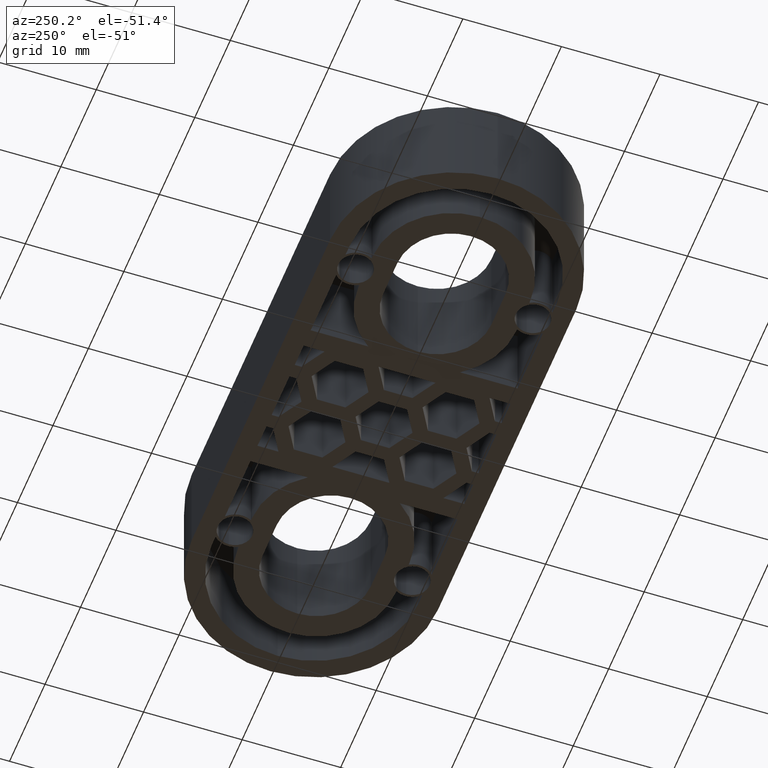
[diagram: clean part render]
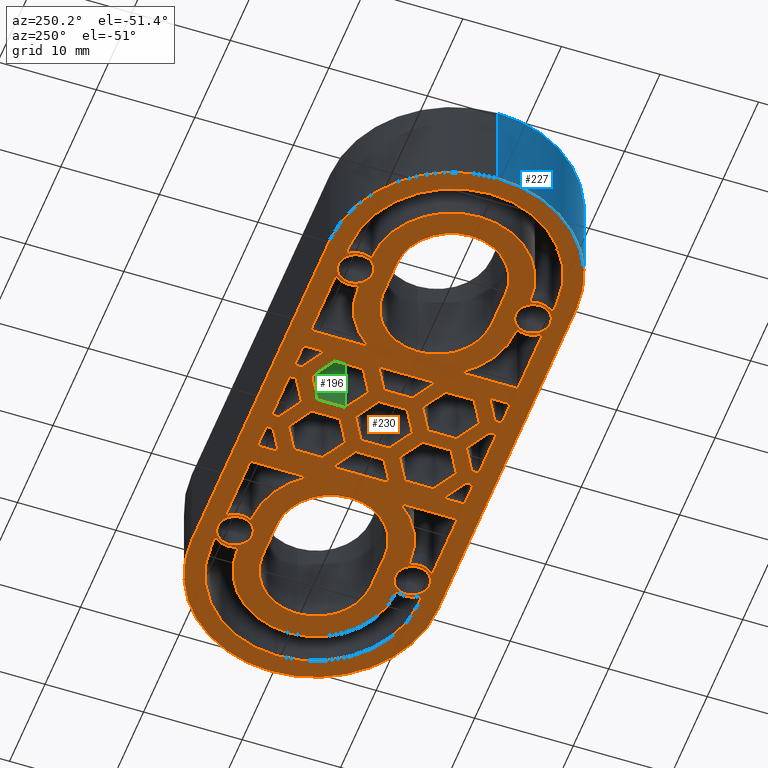
[diagram: same view with three faces highlighted in distinct colors, each labeled with its STEP entity id]
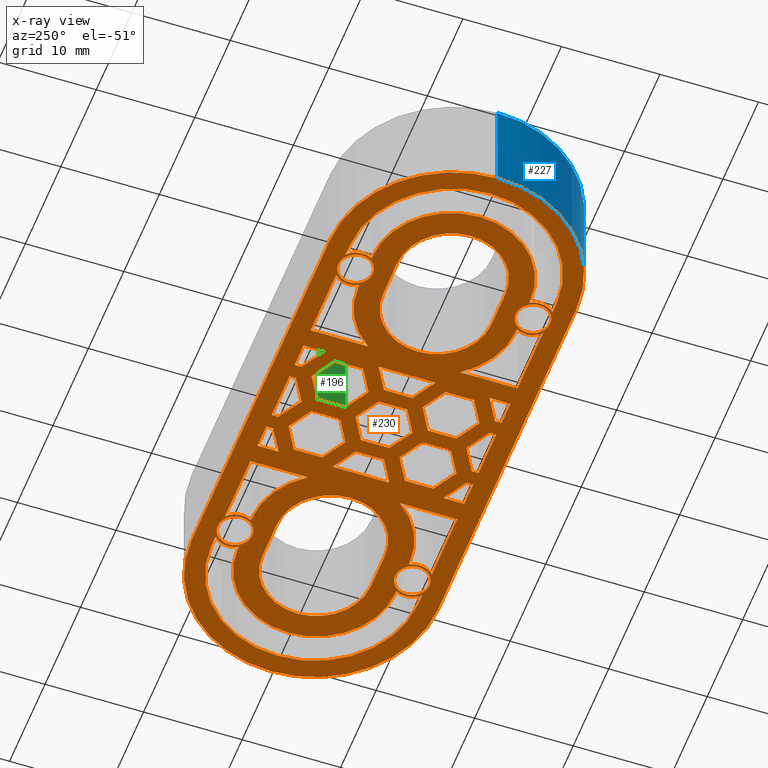
[diagram: x-ray of the same camera — body ghosted, the three highlighted faces saturated]
A machine part, auxiliary view with three faces highlighted in distinct colors.
The next image is the same camera in x-ray (body ghosted, the three faces saturated) — at least one of them is partly hidden behind the body in this view.
Their STEP definitions:

[orange] entity #230 — the highlighted planar face has unit normal (0, -0, -1).
#230 = ADVANCED_FACE( '', ( #589, #590, #591, #592, #593, #594, #595, #596, #597, #598, #599, #600, #601, #602, #603, #604, #605, #606, #607, #608, #609, #610, #611, #612, #613, #614 ), #615, .T. );
#589 = FACE_BOUND( '', #1005, .T. );
#590 = FACE_BOUND( '', #1006, .T. );
#591 = FACE_BOUND( '', #1007, .T. );
#592 = FACE_BOUND( '', #1008, .T. );
#593 = FACE_BOUND( '', #1009, .T. );
#594 = FACE_BOUND( '', #1010, .T. );
#595 = FACE_BOUND( '', #1011, .T. );
#596 = FACE_BOUND( '', #1012, .T. );
#597 = FACE_BOUND( '', #1013, .T. );
#598 = FACE_BOUND( '', #1014, .T. );
#599 = FACE_BOUND( '', #1015, .T. );
#600 = FACE_BOUND( '', #1016, .T. );
#601 = FACE_BOUND( '', #1017, .T. );
#602 = FACE_BOUND( '', #1018, .T. );
#603 = FACE_BOUND( '', #1019, .T. );
#604 = FACE_BOUND( '', #1020, .T. );
#605 = FACE_BOUND( '', #1021, .T. );
#606 = FACE_BOUND( '', #1022, .T. );
#607 = FACE_BOUND( '', #1023, .T. );
#608 = FACE_OUTER_BOUND( '', #1024, .T. );
#609 = FACE_BOUND( '', #1025, .T. );
#610 = FACE_BOUND( '', #1026, .T. );
#611 = FACE_BOUND( '', #1027, .T. );
#612 = FACE_BOUND( '', #1028, .T. );
#613 = FACE_BOUND( '', #1029, .T. );
#614 = FACE_BOUND( '', #1030, .T. );
#615 = PLANE( '', #1031 );
#1005 = EDGE_LOOP( '', ( #2216 ) );
#1006 = EDGE_LOOP( '', ( #2217 ) );
#1007 = EDGE_LOOP( '', ( #2218 ) );
#1008 = EDGE_LOOP( '', ( #2219 ) );
#1009 = EDGE_LOOP( '', ( #2220, #2221, #2222, #2223, #2224, #2225 ) );
#1010 = EDGE_LOOP( '', ( #2226, #2227, #2228, #2229, #2230, #2231 ) );
#1011 = EDGE_LOOP( '', ( #2232, #2233, #2234, #2235, #2236, #2237, #2238, #2239, #2240, #2241 ) );
#1012 = EDGE_LOOP( '', ( #2242, #2243, #2244, #2245, #2246 ) );
#1013 = EDGE_LOOP( '', ( #2247, #2248, #2249, #2250, #2251 ) );
#1014 = EDGE_LOOP( '', ( #2252, #2253, #2254, #2255, #2256, #2257, #2258, #2259, #2260, #2261 ) );
#1015 = EDGE_LOOP( '', ( #2262, #2263, #2264, #2265, #2266 ) );
#1016 = EDGE_LOOP( '', ( #2267, #2268, #2269, #2270, #2271 ) );
#1017 = EDGE_LOOP( '', ( #2272, #2273, #2274, #2275 ) );
#1018 = EDGE_LOOP( '', ( #2276, #2277, #2278, #2279 ) );
#1019 = EDGE_LOOP( '', ( #2280, #2281, #2282, #2283 ) );
#1020 = EDGE_LOOP( '', ( #2284, #2285, #2286, #2287 ) );
#1021 = EDGE_LOOP( '', ( #2288, #2289, #2290, #2291, #2292 ) );
#1022 = EDGE_LOOP( '', ( #2293, #2294, #2295, #2296 ) );
#1023 = EDGE_LOOP( '', ( #2297, #2298, #2299, #2300 ) );
#1024 = EDGE_LOOP( '', ( #2301, #2302, #2303, #2304, #2305, #2306 ) );
#1025 = EDGE_LOOP( '', ( #2307, #2308, #2309, #2310, #2311 ) );
#1026 = EDGE_LOOP( '', ( #2312, #2313, #2314, #2315, #2316, #2317 ) );
#1027 = EDGE_LOOP( '', ( #2318, #2319, #2320, #2321, #2322, #2323 ) );
#1028 = EDGE_LOOP( '', ( #2324, #2325, #2326, #2327, #2328, #2329 ) );
#1029 = EDGE_LOOP( '', ( #2330, #2331, #2332, #2333, #2334, #2335 ) );
#1030 = EDGE_LOOP( '', ( #2336, #2337, #2338, #2339, #2340, #2341 ) );
#1031 = AXIS2_PLACEMENT_3D( '', #2342, #2343, #2344 );
#2216 = ORIENTED_EDGE( '', *, *, #2641, .F. );
#2217 = ORIENTED_EDGE( '', *, *, #2643, .F. );
#2218 = ORIENTED_EDGE( '', *, *, #2645, .F. );
#2219 = ORIENTED_EDGE( '', *, *, #2647, .F. );
#2220 = ORIENTED_EDGE( '', *, *, #2710, .F. );
#2221 = ORIENTED_EDGE( '', *, *, #2708, .F. );
#2222 = ORIENTED_EDGE( '', *, *, #2706, .F. );
#2223 = ORIENTED_EDGE( '', *, *, #2704, .F. );
#2224 = ORIENTED_EDGE( '', *, *, #2702, .F. );
#2225 = ORIENTED_EDGE( '', *, *, #2699, .F. );
#2226 = ORIENTED_EDGE( '', *, *, #2722, .T. );
#2227 = ORIENTED_EDGE( '', *, *, #2720, .T. );
#2228 = ORIENTED_EDGE( '', *, *, #2718, .T. );
#2229 = ORIENTED_EDGE( '', *, *, #2716, .T. );
#2230 = ORIENTED_EDGE( '', *, *, #2714, .T. );
#2231 = ORIENTED_EDGE( '', *, *, #2711, .T. );
#2232 = ORIENTED_EDGE( '', *, *, #2726, .T. );
#2233 = ORIENTED_EDGE( '', *, *, #3008, .T. );
#2234 = ORIENTED_EDGE( '', *, *, #2998, .T. );
#2235 = ORIENTED_EDGE( '', *, *, #2988, .T. );
#2236 = ORIENTED_EDGE( '', *, *, #3009, .T. );
#2237 = ORIENTED_EDGE( '', *, *, #2740, .T. );
#2238 = ORIENTED_EDGE( '', *, *, #3010, .F. );
#2239 = ORIENTED_EDGE( '', *, *, #2760, .F. );
#2240 = ORIENTED_EDGE( '', *, *, #2763, .F. );
#2241 = ORIENTED_EDGE( '', *, *, #3011, .F. );
#2242 = ORIENTED_EDGE( '', *, *, #3012, .T. );
#2243 = ORIENTED_EDGE( '', *, *, #2732, .T. );
#2244 = ORIENTED_EDGE( '', *, *, #3013, .F. );
#2245 = ORIENTED_EDGE( '', *, *, #2767, .F. );
#2246 = ORIENTED_EDGE( '', *, *, #2770, .F. );
#2247 = ORIENTED_EDGE( '', *, *, #2734, .T. );
#2248 = ORIENTED_EDGE( '', *, *, #3014, .T. );
#2249 = ORIENTED_EDGE( '', *, *, #2778, .F. );
#2250 = ORIENTED_EDGE( '', *, *, #2789, .F. );
#2251 = ORIENTED_EDGE( '', *, *, #3015, .F. );
#2252 = ORIENTED_EDGE( '', *, *, #2742, .T. );
#2253 = ORIENTED_EDGE( '', *, *, #3016, .T. );
#2254 = ORIENTED_EDGE( '', *, *, #2992, .T. );
#2255 = ORIENTED_EDGE( '', *, *, #2995, .T. );
#2256 = ORIENTED_EDGE( '', *, *, #3017, .T. );
#2257 = ORIENTED_EDGE( '', *, *, #2756, .T. );
#2258 = ORIENTED_EDGE( '', *, *, #3018, .F. );
#2259 = ORIENTED_EDGE( '', *, *, #2807, .F. );
#2260 = ORIENTED_EDGE( '', *, *, #2810, .F. );
#2261 = ORIENTED_EDGE( '', *, *, #3019, .F. );
#2262 = ORIENTED_EDGE( '', *, *, #3020, .T. );
#2263 = ORIENTED_EDGE( '', *, *, #2748, .T. );
#2264 = ORIENTED_EDGE( '', *, *, #3021, .F. );
#2265 = ORIENTED_EDGE( '', *, *, #2793, .F. );
#2266 = ORIENTED_EDGE( '', *, *, #2796, .F. );
#2267 = ORIENTED_EDGE( '', *, *, #2750, .T. );
#2268 = ORIENTED_EDGE( '', *, *, #3022, .T. );
#2269 = ORIENTED_EDGE( '', *, *, #2800, .F. );
#2270 = ORIENTED_EDGE( '', *, *, #2803, .F. );
#2271 = ORIENTED_EDGE( '', *, *, #3023, .F. );
#2272 = ORIENTED_EDGE( '', *, *, #2774, .F. );
#2273 = ORIENTED_EDGE( '', *, *, #3024, .T. );
#2274 = ORIENTED_EDGE( '', *, *, #2869, .F. );
#2275 = ORIENTED_EDGE( '', *, *, #2858, .F. );
#2276 = ORIENTED_EDGE( '', *, *, #2786, .F. );
#2277 = ORIENTED_EDGE( '', *, *, #2886, .F. );
#2278 = ORIENTED_EDGE( '', *, *, #2889, .F. );
#2279 = ORIENTED_EDGE( '', *, *, #3025, .T. );
#2280 = ORIENTED_EDGE( '', *, *, #2814, .F. );
#2281 = ORIENTED_EDGE( '', *, *, #3026, .T. );
#2282 = ORIENTED_EDGE( '', *, *, #2907, .F. );
#2283 = ORIENTED_EDGE( '', *, *, #2905, .F. );
#2284 = ORIENTED_EDGE( '', *, *, #2822, .F. );
#2285 = ORIENTED_EDGE( '', *, *, #2960, .F. );
#2286 = ORIENTED_EDGE( '', *, *, #2963, .F. );
#2287 = ORIENTED_EDGE( '', *, *, #2957, .F. );
#2288 = ORIENTED_EDGE( '', *, *, #3027, .T. );
#2289 = ORIENTED_EDGE( '', *, *, #2903, .F. );
#2290 = ORIENTED_EDGE( '', *, *, #2892, .F. );
#2291 = ORIENTED_EDGE( '', *, *, #2896, .F. );
#2292 = ORIENTED_EDGE( '', *, *, #2899, .F. );
#2293 = ORIENTED_EDGE( '', *, *, #3028, .T. );
#2294 = ORIENTED_EDGE( '', *, *, #2818, .F. );
#2295 = ORIENTED_EDGE( '', *, *, #2880, .F. );
#2296 = ORIENTED_EDGE( '', *, *, #2883, .F. );
#2297 = ORIENTED_EDGE( '', *, *, #2971, .F. );
#2298 = ORIENTED_EDGE( '', *, *, #2782, .F. );
#2299 = ORIENTED_EDGE( '', *, *, #2965, .F. );
#2300 = ORIENTED_EDGE( '', *, *, #2968, .F. );
#2301 = ORIENTED_EDGE( '', *, *, #2633, .T. );
#2302 = ORIENTED_EDGE( '', *, *, #3007, .T. );
#2303 = ORIENTED_EDGE( '', *, *, #3005, .T. );
#2304 = ORIENTED_EDGE( '', *, *, #3003, .T. );
#2305 = ORIENTED_EDGE( '', *, *, #3001, .T. );
#2306 = ORIENTED_EDGE( '', *, *, #2999, .T. );
#2307 = ORIENTED_EDGE( '', *, *, #2878, .F. );
#2308 = ORIENTED_EDGE( '', *, *, #3029, .T. );
#2309 = ORIENTED_EDGE( '', *, *, #2876, .F. );
#2310 = ORIENTED_EDGE( '', *, *, #2871, .F. );
#2311 = ORIENTED_EDGE( '', *, *, #2874, .F. );
#2312 = ORIENTED_EDGE( '', *, *, #2930, .T. );
#2313 = ORIENTED_EDGE( '', *, *, #2932, .T. );
#2314 = ORIENTED_EDGE( '', *, *, #2921, .T. );
#2315 = ORIENTED_EDGE( '', *, *, #2924, .T. );
#2316 = ORIENTED_EDGE( '', *, *, #2926, .T. );
#2317 = ORIENTED_EDGE( '', *, *, #2928, .T. );
#2318 = ORIENTED_EDGE( '', *, *, #2944, .F. );
#2319 = ORIENTED_EDGE( '', *, *, #2933, .F. );
#2320 = ORIENTED_EDGE( '', *, *, #2936, .F. );
#2321 = ORIENTED_EDGE( '', *, *, #2938, .F. );
#2322 = ORIENTED_EDGE( '', *, *, #2940, .F. );
#2323 = ORIENTED_EDGE( '', *, *, #2942, .F. );
#2324 = ORIENTED_EDGE( '', *, *, #2956, .F. );
#2325 = ORIENTED_EDGE( '', *, *, #2945, .F. );
#2326 = ORIENTED_EDGE( '', *, *, #2948, .F. );
#2327 = ORIENTED_EDGE( '', *, *, #2950, .F. );
#2328 = ORIENTED_EDGE( '', *, *, #2952, .F. );
#2329 = ORIENTED_EDGE( '', *, *, #2954, .F. );
#2330 = ORIENTED_EDGE( '', *, *, #2984, .F. );
#2331 = ORIENTED_EDGE( '', *, *, #2973, .F. );
#2332 = ORIENTED_EDGE( '', *, *, #2976, .F. );
#2333 = ORIENTED_EDGE( '', *, *, #2978, .F. );
#2334 = ORIENTED_EDGE( '', *, *, #2980, .F. );
#2335 = ORIENTED_EDGE( '', *, *, #2982, .F. );
#2336 = ORIENTED_EDGE( '', *, *, #2918, .T. );
#2337 = ORIENTED_EDGE( '', *, *, #2920, .T. );
#2338 = ORIENTED_EDGE( '', *, *, #2909, .T. );
#2339 = ORIENTED_EDGE( '', *, *, #2912, .T. );
#2340 = ORIENTED_EDGE( '', *, *, #2914, .T. );
#2341 = ORIENTED_EDGE( '', *, *, #2916, .T. );
#2342 = CARTESIAN_POINT( '', ( 19.5000000000000, 2.77555756156289E-015, -1.69948271264483E-031 ) );
#2343 = DIRECTION( '', ( 0.000000000000000, -6.12303176911189E-017, -1.00000000000000 ) );
#2344 = DIRECTION( '', ( 1.00000000000000, 6.12303176911189E-017, -3.74915180455534E-033 ) );
#2633 = EDGE_CURVE( '', #3144, #3142, #3145, .T. );
#2641 = EDGE_CURVE( '', #3157, #3157, #3158, .T. );
#2643 = EDGE_CURVE( '', #3161, #3161, #3162, .T. );
#2645 = EDGE_CURVE( '', #3165, #3165, #3166, .T. );
#2647 = EDGE_CURVE( '', #3169, #3169, #3170, .T. );
#2699 = EDGE_CURVE( '', #3247, #3248, #3249, .F. );
#2702 = EDGE_CURVE( '', #3248, #3252, #3253, .F. );
#2704 = EDGE_CURVE( '', #3252, #3255, #3256, .T. );
#2706 = EDGE_CURVE( '', #3255, #3258, #3259, .F. );
#2708 = EDGE_CURVE( '', #3258, #3261, #3262, .F. );
#2710 = EDGE_CURVE( '', #3261, #3247, #3264, .T. );
#2711 = EDGE_CURVE( '', #3265, #3266, #3267, .T. );
#2714 = EDGE_CURVE( '', #3270, #3265, #3271, .T. );
#2716 = EDGE_CURVE( '', #3273, #3270, #3274, .T. );
#2718 = EDGE_CURVE( '', #3276, #3273, #3277, .T. );
#2720 = EDGE_CURVE( '', #3279, #3276, #3280, .T. );
#2722 = EDGE_CURVE( '', #3266, #3279, #3282, .F. );
#2726 = EDGE_CURVE( '', #3290, #3287, #3291, .T. );
#2732 = EDGE_CURVE( '', #3296, #3300, #3302, .T. );
#2734 = EDGE_CURVE( '', #3306, #3303, #3307, .T. );
#2740 = EDGE_CURVE( '', #3312, #3316, #3318, .T. );
#2742 = EDGE_CURVE( '', #3322, #3319, #3323, .T. );
#2748 = EDGE_CURVE( '', #3328, #3332, #3334, .T. );
#2750 = EDGE_CURVE( '', #3338, #3335, #3339, .T. );
#2756 = EDGE_CURVE( '', #3344, #3348, #3350, .T. );
#2760 = EDGE_CURVE( '', #3356, #3351, #3358, .T. );
#2763 = EDGE_CURVE( '', #3361, #3356, #3363, .T. );
#2767 = EDGE_CURVE( '', #3369, #3364, #3371, .T. );
#2770 = EDGE_CURVE( '', #3374, #3369, #3376, .T. );
#2774 = EDGE_CURVE( '', #3382, #3378, #3384, .T. );
#2778 = EDGE_CURVE( '', #3390, #3385, #3392, .T. );
#2782 = EDGE_CURVE( '', #3398, #3394, #3400, .T. );
#2786 = EDGE_CURVE( '', #3406, #3401, #3408, .T. );
#2789 = EDGE_CURVE( '', #3411, #3390, #3413, .T. );
#2793 = EDGE_CURVE( '', #3419, #3414, #3421, .T. );
#2796 = EDGE_CURVE( '', #3424, #3419, #3426, .T. );
#2800 = EDGE_CURVE( '', #3432, #3427, #3434, .T. );
#2803 = EDGE_CURVE( '', #3437, #3432, #3439, .T. );
#2807 = EDGE_CURVE( '', #3445, #3440, #3447, .T. );
#2810 = EDGE_CURVE( '', #3450, #3445, #3452, .T. );
#2814 = EDGE_CURVE( '', #3458, #3454, #3460, .T. );
#2818 = EDGE_CURVE( '', #3466, #3461, #3468, .T. );
#2822 = EDGE_CURVE( '', #3474, #3470, #3476, .T. );
#2858 = EDGE_CURVE( '', #3378, #3544, #3545, .T. );
#2869 = EDGE_CURVE( '', #3544, #3563, #3564, .T. );
#2871 = EDGE_CURVE( '', #3566, #3567, #3568, .T. );
#2874 = EDGE_CURVE( '', #3571, #3566, #3572, .T. );
#2876 = EDGE_CURVE( '', #3567, #3574, #3575, .T. );
#2878 = EDGE_CURVE( '', #3577, #3571, #3578, .T. );
#2880 = EDGE_CURVE( '', #3580, #3466, #3581, .T. );
#2883 = EDGE_CURVE( '', #3585, #3580, #3586, .T. );
#2886 = EDGE_CURVE( '', #3590, #3406, #3591, .T. );
#2889 = EDGE_CURVE( '', #3595, #3590, #3596, .T. );
#2892 = EDGE_CURVE( '', #3600, #3601, #3602, .T. );
#2896 = EDGE_CURVE( '', #3608, #3600, #3609, .T. );
#2899 = EDGE_CURVE( '', #3613, #3608, #3614, .T. );
#2903 = EDGE_CURVE( '', #3601, #3620, #3621, .T. );
#2905 = EDGE_CURVE( '', #3454, #3623, #3624, .T. );
#2907 = EDGE_CURVE( '', #3623, #3626, #3627, .T. );
#2909 = EDGE_CURVE( '', #3629, #3630, #3631, .F. );
#2912 = EDGE_CURVE( '', #3630, #3634, #3635, .F. );
#2914 = EDGE_CURVE( '', #3634, #3637, #3638, .F. );
#2916 = EDGE_CURVE( '', #3637, #3640, #3641, .F. );
#2918 = EDGE_CURVE( '', #3640, #3643, #3644, .F. );
#2920 = EDGE_CURVE( '', #3643, #3629, #3646, .F. );
#2921 = EDGE_CURVE( '', #3647, #3648, #3649, .F. );
#2924 = EDGE_CURVE( '', #3648, #3652, #3653, .F. );
#2926 = EDGE_CURVE( '', #3652, #3655, #3656, .F. );
#2928 = EDGE_CURVE( '', #3655, #3658, #3659, .F. );
#2930 = EDGE_CURVE( '', #3658, #3661, #3662, .F. );
#2932 = EDGE_CURVE( '', #3661, #3647, #3664, .F. );
#2933 = EDGE_CURVE( '', #3665, #3666, #3667, .T. );
#2936 = EDGE_CURVE( '', #3670, #3665, #3671, .T. );
#2938 = EDGE_CURVE( '', #3673, #3670, #3674, .T. );
#2940 = EDGE_CURVE( '', #3676, #3673, #3677, .T. );
#2942 = EDGE_CURVE( '', #3679, #3676, #3680, .T. );
#2944 = EDGE_CURVE( '', #3666, #3679, #3682, .T. );
#2945 = EDGE_CURVE( '', #3683, #3684, #3685, .T. );
#2948 = EDGE_CURVE( '', #3688, #3683, #3689, .T. );
#2950 = EDGE_CURVE( '', #3691, #3688, #3692, .T. );
#2952 = EDGE_CURVE( '', #3694, #3691, #3695, .T. );
#2954 = EDGE_CURVE( '', #3697, #3694, #3698, .T. );
#2956 = EDGE_CURVE( '', #3684, #3697, #3700, .T. );
#2957 = EDGE_CURVE( '', #3470, #3701, #3702, .T. );
#2960 = EDGE_CURVE( '', #3706, #3474, #3707, .T. );
#2963 = EDGE_CURVE( '', #3701, #3706, #3711, .T. );
#2965 = EDGE_CURVE( '', #3713, #3398, #3714, .T. );
#2968 = EDGE_CURVE( '', #3718, #3713, #3719, .T. );
#2971 = EDGE_CURVE( '', #3394, #3718, #3723, .T. );
#2973 = EDGE_CURVE( '', #3725, #3726, #3727, .T. );
#2976 = EDGE_CURVE( '', #3730, #3725, #3731, .T. );
#2978 = EDGE_CURVE( '', #3733, #3730, #3734, .T. );
#2980 = EDGE_CURVE( '', #3736, #3733, #3737, .T. );
#2982 = EDGE_CURVE( '', #3739, #3736, #3740, .T. );
#2984 = EDGE_CURVE( '', #3726, #3739, #3742, .T. );
#2988 = EDGE_CURVE( '', #3743, #3748, #3750, .F. );
#2992 = EDGE_CURVE( '', #3751, #3756, #3758, .F. );
#2995 = EDGE_CURVE( '', #3756, #3761, #3763, .F. );
#2998 = EDGE_CURVE( '', #3764, #3743, #3768, .F. );
#2999 = EDGE_CURVE( '', #3769, #3144, #3770, .T. );
#3001 = EDGE_CURVE( '', #3772, #3769, #3773, .T. );
#3003 = EDGE_CURVE( '', #3775, #3772, #3776, .T. );
#3005 = EDGE_CURVE( '', #3778, #3775, #3779, .T. );
#3007 = EDGE_CURVE( '', #3142, #3778, #3781, .T. );
#3008 = EDGE_CURVE( '', #3287, #3764, #3782, .T. );
#3009 = EDGE_CURVE( '', #3748, #3312, #3783, .T. );
#3010 = EDGE_CURVE( '', #3351, #3316, #3784, .T. );
#3011 = EDGE_CURVE( '', #3290, #3361, #3785, .T. );
#3012 = EDGE_CURVE( '', #3374, #3296, #3786, .T. );
#3013 = EDGE_CURVE( '', #3364, #3300, #3787, .T. );
#3014 = EDGE_CURVE( '', #3303, #3385, #3788, .T. );
#3015 = EDGE_CURVE( '', #3306, #3411, #3789, .T. );
#3016 = EDGE_CURVE( '', #3319, #3751, #3790, .T. );
#3017 = EDGE_CURVE( '', #3761, #3344, #3791, .T. );
#3018 = EDGE_CURVE( '', #3440, #3348, #3792, .T. );
#3019 = EDGE_CURVE( '', #3322, #3450, #3793, .T. );
#3020 = EDGE_CURVE( '', #3424, #3328, #3794, .T. );
#3021 = EDGE_CURVE( '', #3414, #3332, #3795, .T. );
#3022 = EDGE_CURVE( '', #3335, #3427, #3796, .T. );
#3023 = EDGE_CURVE( '', #3338, #3437, #3797, .T. );
#3024 = EDGE_CURVE( '', #3382, #3563, #3798, .T. );
#3025 = EDGE_CURVE( '', #3595, #3401, #3799, .T. );
#3026 = EDGE_CURVE( '', #3458, #3626, #3800, .T. );
#3027 = EDGE_CURVE( '', #3613, #3620, #3801, .T. );
#3028 = EDGE_CURVE( '', #3585, #3461, #3802, .T. );
#3029 = EDGE_CURVE( '', #3577, #3574, #3803, .T. );
#3142 = VERTEX_POINT( '', #3948 );
#3144 = VERTEX_POINT( '', #3951 );
#3145 = CIRCLE( '', #3952, 12.5000000000000 );
#3157 = VERTEX_POINT( '', #3969 );
#3158 = CIRCLE( '', #3970, 1.75000000000000 );
#3161 = VERTEX_POINT( '', #3973 );
#3162 = CIRCLE( '', #3974, 1.75000000000000 );
#3165 = VERTEX_POINT( '', #3977 );
#3166 = CIRCLE( '', #3978, 1.75000000000000 );
#3169 = VERTEX_POINT( '', #3981 );
#3170 = CIRCLE( '', #3982, 1.75000000000000 );
#3247 = VERTEX_POINT( '', #4109 );
#3248 = VERTEX_POINT( '', #4110 );
#3249 = CIRCLE( '', #4111, 5.50000000000000 );
#3252 = VERTEX_POINT( '', #4116 );
#3253 = CIRCLE( '', #4117, 5.50000000000000 );
#3255 = VERTEX_POINT( '', #4120 );
#3256 = LINE( '', #4121, #4122 );
#3258 = VERTEX_POINT( '', #4125 );
#3259 = CIRCLE( '', #4126, 5.50000000000000 );
#3261 = VERTEX_POINT( '', #4129 );
#3262 = CIRCLE( '', #4130, 5.50000000000000 );
#3264 = LINE( '', #4133, #4134 );
#3265 = VERTEX_POINT( '', #4135 );
#3266 = VERTEX_POINT( '', #4136 );
#3267 = CIRCLE( '', #4137, 5.50000000000000 );
#3270 = VERTEX_POINT( '', #4142 );
#3271 = CIRCLE( '', #4143, 5.50000000000000 );
#3273 = VERTEX_POINT( '', #4146 );
#3274 = LINE( '', #4147, #4148 );
#3276 = VERTEX_POINT( '', #4151 );
#3277 = CIRCLE( '', #4152, 5.50000000000000 );
#3279 = VERTEX_POINT( '', #4155 );
#3280 = CIRCLE( '', #4156, 5.50000000000000 );
#3282 = LINE( '', #4159, #4160 );
#3287 = VERTEX_POINT( '', #4165 );
#3290 = VERTEX_POINT( '', #4169 );
#3291 = CIRCLE( '', #4170, 2.00000000000000 );
#3296 = VERTEX_POINT( '', #4176 );
#3300 = VERTEX_POINT( '', #4181 );
#3302 = CIRCLE( '', #4184, 2.00000000000000 );
#3303 = VERTEX_POINT( '', #4185 );
#3306 = VERTEX_POINT( '', #4189 );
#3307 = CIRCLE( '', #4190, 2.00000000000000 );
#3312 = VERTEX_POINT( '', #4196 );
#3316 = VERTEX_POINT( '', #4201 );
#3318 = CIRCLE( '', #4204, 2.00000000000000 );
#3319 = VERTEX_POINT( '', #4205 );
#3322 = VERTEX_POINT( '', #4209 );
#3323 = CIRCLE( '', #4210, 2.00000000000000 );
#3328 = VERTEX_POINT( '', #4216 );
#3332 = VERTEX_POINT( '', #4221 );
#3334 = CIRCLE( '', #4224, 2.00000000000000 );
#3335 = VERTEX_POINT( '', #4225 );
#3338 = VERTEX_POINT( '', #4229 );
#3339 = CIRCLE( '', #4230, 2.00000000000000 );
#3344 = VERTEX_POINT( '', #4236 );
#3348 = VERTEX_POINT( '', #4241 );
#3350 = CIRCLE( '', #4244, 2.00000000000000 );
#3351 = VERTEX_POINT( '', #4245 );
#3356 = VERTEX_POINT( '', #4251 );
#3358 = CIRCLE( '', #4254, 8.00000000000000 );
#3361 = VERTEX_POINT( '', #4257 );
#3363 = CIRCLE( '', #4260, 8.00000000000001 );
#3364 = VERTEX_POINT( '', #4261 );
#3369 = VERTEX_POINT( '', #4267 );
#3371 = CIRCLE( '', #4270, 8.00000000000000 );
#3374 = VERTEX_POINT( '', #4274 );
#3376 = LINE( '', #4277, #4278 );
#3378 = VERTEX_POINT( '', #4280 );
#3382 = VERTEX_POINT( '', #4286 );
#3384 = LINE( '', #4289, #4290 );
#3385 = VERTEX_POINT( '', #4291 );
#3390 = VERTEX_POINT( '', #4298 );
#3392 = LINE( '', #4301, #4302 );
#3394 = VERTEX_POINT( '', #4304 );
#3398 = VERTEX_POINT( '', #4310 );
#3400 = LINE( '', #4313, #4314 );
#3401 = VERTEX_POINT( '', #4315 );
#3406 = VERTEX_POINT( '', #4322 );
#3408 = LINE( '', #4325, #4326 );
#3411 = VERTEX_POINT( '', #4329 );
#3413 = CIRCLE( '', #4332, 8.00000000000000 );
#3414 = VERTEX_POINT( '', #4333 );
#3419 = VERTEX_POINT( '', #4339 );
#3421 = CIRCLE( '', #4342, 8.00000000000000 );
#3424 = VERTEX_POINT( '', #4346 );
#3426 = LINE( '', #4349, #4350 );
#3427 = VERTEX_POINT( '', #4351 );
#3432 = VERTEX_POINT( '', #4358 );
#3434 = LINE( '', #4361, #4362 );
#3437 = VERTEX_POINT( '', #4365 );
#3439 = CIRCLE( '', #4368, 8.00000000000000 );
#3440 = VERTEX_POINT( '', #4369 );
#3445 = VERTEX_POINT( '', #4375 );
#3447 = CIRCLE( '', #4378, 8.00000000000000 );
#3450 = VERTEX_POINT( '', #4381 );
#3452 = CIRCLE( '', #4384, 8.00000000000000 );
#3454 = VERTEX_POINT( '', #4386 );
#3458 = VERTEX_POINT( '', #4392 );
#3460 = LINE( '', #4395, #4396 );
#3461 = VERTEX_POINT( '', #4397 );
#3466 = VERTEX_POINT( '', #4404 );
#3468 = LINE( '', #4407, #4408 );
#3470 = VERTEX_POINT( '', #4410 );
#3474 = VERTEX_POINT( '', #4416 );
#3476 = LINE( '', #4419, #4420 );
#3544 = VERTEX_POINT( '', #4523 );
#3545 = LINE( '', #4524, #4525 );
#3563 = VERTEX_POINT( '', #4553 );
#3564 = LINE( '', #4554, #4555 );
#3566 = VERTEX_POINT( '', #4558 );
#3567 = VERTEX_POINT( '', #4559 );
#3568 = LINE( '', #4560, #4561 );
#3571 = VERTEX_POINT( '', #4566 );
#3572 = LINE( '', #4567, #4568 );
#3574 = VERTEX_POINT( '', #4571 );
#3575 = LINE( '', #4572, #4573 );
#3577 = VERTEX_POINT( '', #4576 );
#3578 = LINE( '', #4577, #4578 );
#3580 = VERTEX_POINT( '', #4581 );
#3581 = LINE( '', #4582, #4583 );
#3585 = VERTEX_POINT( '', #4589 );
#3586 = LINE( '', #4590, #4591 );
#3590 = VERTEX_POINT( '', #4597 );
#3591 = LINE( '', #4598, #4599 );
#3595 = VERTEX_POINT( '', #4605 );
#3596 = LINE( '', #4606, #4607 );
#3600 = VERTEX_POINT( '', #4613 );
#3601 = VERTEX_POINT( '', #4614 );
#3602 = LINE( '', #4615, #4616 );
#3608 = VERTEX_POINT( '', #4625 );
#3609 = LINE( '', #4626, #4627 );
#3613 = VERTEX_POINT( '', #4633 );
#3614 = LINE( '', #4634, #4635 );
#3620 = VERTEX_POINT( '', #4644 );
#3621 = LINE( '', #4645, #4646 );
#3623 = VERTEX_POINT( '', #4649 );
#3624 = LINE( '', #4650, #4651 );
#3626 = VERTEX_POINT( '', #4654 );
#3627 = LINE( '', #4655, #4656 );
#3629 = VERTEX_POINT( '', #4659 );
#3630 = VERTEX_POINT( '', #4660 );
#3631 = LINE( '', #4661, #4662 );
#3634 = VERTEX_POINT( '', #4667 );
#3635 = LINE( '', #4668, #4669 );
#3637 = VERTEX_POINT( '', #4672 );
#3638 = LINE( '', #4673, #4674 );
#3640 = VERTEX_POINT( '', #4677 );
#3641 = LINE( '', #4678, #4679 );
#3643 = VERTEX_POINT( '', #4682 );
#3644 = LINE( '', #4683, #4684 );
#3646 = LINE( '', #4687, #4688 );
#3647 = VERTEX_POINT( '', #4689 );
#3648 = VERTEX_POINT( '', #4690 );
#3649 = LINE( '', #4691, #4692 );
#3652 = VERTEX_POINT( '', #4697 );
#3653 = LINE( '', #4698, #4699 );
#3655 = VERTEX_POINT( '', #4702 );
#3656 = LINE( '', #4703, #4704 );
#3658 = VERTEX_POINT( '', #4707 );
#3659 = LINE( '', #4708, #4709 );
#3661 = VERTEX_POINT( '', #4712 );
#3662 = LINE( '', #4713, #4714 );
#3664 = LINE( '', #4717, #4718 );
#3665 = VERTEX_POINT( '', #4719 );
#3666 = VERTEX_POINT( '', #4720 );
#3667 = LINE( '', #4721, #4722 );
#3670 = VERTEX_POINT( '', #4727 );
#3671 = LINE( '', #4728, #4729 );
#3673 = VERTEX_POINT( '', #4732 );
#3674 = LINE( '', #4733, #4734 );
#3676 = VERTEX_POINT( '', #4737 );
#3677 = LINE( '', #4738, #4739 );
#3679 = VERTEX_POINT( '', #4742 );
#3680 = LINE( '', #4743, #4744 );
#3682 = LINE( '', #4747, #4748 );
#3683 = VERTEX_POINT( '', #4749 );
#3684 = VERTEX_POINT( '', #4750 );
#3685 = LINE( '', #4751, #4752 );
#3688 = VERTEX_POINT( '', #4757 );
#3689 = LINE( '', #4758, #4759 );
#3691 = VERTEX_POINT( '', #4762 );
#3692 = LINE( '', #4763, #4764 );
#3694 = VERTEX_POINT( '', #4767 );
#3695 = LINE( '', #4768, #4769 );
#3697 = VERTEX_POINT( '', #4772 );
#3698 = LINE( '', #4773, #4774 );
#3700 = LINE( '', #4777, #4778 );
#3701 = VERTEX_POINT( '', #4779 );
#3702 = LINE( '', #4780, #4781 );
#3706 = VERTEX_POINT( '', #4787 );
#3707 = LINE( '', #4788, #4789 );
#3711 = LINE( '', #4795, #4796 );
#3713 = VERTEX_POINT( '', #4799 );
#3714 = LINE( '', #4800, #4801 );
#3718 = VERTEX_POINT( '', #4807 );
#3719 = LINE( '', #4808, #4809 );
#3723 = LINE( '', #4815, #4816 );
#3725 = VERTEX_POINT( '', #4819 );
#3726 = VERTEX_POINT( '', #4820 );
#3727 = LINE( '', #4821, #4822 );
#3730 = VERTEX_POINT( '', #4827 );
#3731 = LINE( '', #4828, #4829 );
#3733 = VERTEX_POINT( '', #4832 );
#3734 = LINE( '', #4833, #4834 );
#3736 = VERTEX_POINT( '', #4837 );
#3737 = LINE( '', #4838, #4839 );
#3739 = VERTEX_POINT( '', #4842 );
#3740 = LINE( '', #4843, #4844 );
#3742 = LINE( '', #4847, #4848 );
#3743 = VERTEX_POINT( '', #4849 );
#3748 = VERTEX_POINT( '', #4855 );
#3750 = CIRCLE( '', #4858, 10.5000000000000 );
#3751 = VERTEX_POINT( '', #4859 );
#3756 = VERTEX_POINT( '', #4865 );
#3758 = CIRCLE( '', #4868, 10.5000000000000 );
#3761 = VERTEX_POINT( '', #4871 );
#3763 = CIRCLE( '', #4874, 10.5000000000000 );
#3764 = VERTEX_POINT( '', #4875 );
#3768 = CIRCLE( '', #4880, 10.5000000000000 );
#3769 = VERTEX_POINT( '', #4881 );
#3770 = LINE( '', #4882, #4883 );
#3772 = VERTEX_POINT( '', #4886 );
#3773 = CIRCLE( '', #4887, 12.5000000000000 );
#3775 = VERTEX_POINT( '', #4890 );
#3776 = CIRCLE( '', #4891, 12.5000000000000 );
#3778 = VERTEX_POINT( '', #4894 );
#3779 = LINE( '', #4895, #4896 );
#3781 = CIRCLE( '', #4899, 12.5000000000000 );
#3782 = LINE( '', #4900, #4901 );
#3783 = LINE( '', #4902, #4903 );
#3784 = LINE( '', #4904, #4905 );
#3785 = LINE( '', #4906, #4907 );
#3786 = LINE( '', #4908, #4909 );
#3787 = LINE( '', #4910, #4911 );
#3788 = LINE( '', #4912, #4913 );
#3789 = LINE( '', #4914, #4915 );
#3790 = LINE( '', #4916, #4917 );
#3791 = LINE( '', #4918, #4919 );
#3792 = LINE( '', #4920, #4921 );
#3793 = LINE( '', #4922, #4923 );
#3794 = LINE( '', #4924, #4925 );
#3795 = LINE( '', #4926, #4927 );
#3796 = LINE( '', #4928, #4929 );
#3797 = LINE( '', #4930, #4931 );
#3798 = LINE( '', #4932, #4933 );
#3799 = LINE( '', #4934, #4935 );
#3800 = LINE( '', #4936, #4937 );
#3801 = LINE( '', #4938, #4939 );
#3802 = LINE( '', #4940, #4941 );
#3803 = LINE( '', #4942, #4943 );
#3948 = CARTESIAN_POINT( '', ( 32.0000000000000, 1.53075794227797E-015, -9.37287951138835E-032 ) );
#3951 = CARTESIAN_POINT( '', ( 19.5000000000000, 12.5000000000000, -7.65378971138986E-016 ) );
#3952 = AXIS2_PLACEMENT_3D( '', #5057, #5058, #5059 );
#3969 = CARTESIAN_POINT( '', ( 17.0000000000000, 10.7500000000000, -1.07153055959458E-016 ) );
#3970 = AXIS2_PLACEMENT_3D( '', #5071, #5072, #5073 );
#3973 = CARTESIAN_POINT( '', ( 17.0000000000000, -7.25000000000000, -1.07153055959458E-016 ) );
#3974 = AXIS2_PLACEMENT_3D( '', #5077, #5078, #5079 );
#3977 = CARTESIAN_POINT( '', ( -17.0000000000000, 10.7500000000000, -1.07153055959458E-016 ) );
#3978 = AXIS2_PLACEMENT_3D( '', #5083, #5084, #5085 );
#3981 = CARTESIAN_POINT( '', ( -17.0000000000000, -7.25000000000000, -1.07153055959458E-016 ) );
#3982 = AXIS2_PLACEMENT_3D( '', #5089, #5090, #5091 );
#4109 = CARTESIAN_POINT( '', ( 19.0000000000000, 5.50000000000000, -3.36766747301154E-016 ) );
#4110 = CARTESIAN_POINT( '', ( 24.5000000000000, 3.76018931703276E-015, -2.30237586460667E-031 ) );
#4111 = AXIS2_PLACEMENT_3D( '', #5145, #5146, #5147 );
#4116 = CARTESIAN_POINT( '', ( 19.0000000000000, -5.49999999999999, 3.36766747301153E-016 ) );
#4117 = AXIS2_PLACEMENT_3D( '', #5150, #5151, #5152 );
#4120 = CARTESIAN_POINT( '', ( 15.0000000000000, -5.49999999999999, 3.36766747301153E-016 ) );
#4121 = CARTESIAN_POINT( '', ( 15.0000000000000, -5.49999999999999, 3.36766747301153E-016 ) );
#4122 = VECTOR( '', #5154, 1000.00000000000 );
#4125 = CARTESIAN_POINT( '', ( 9.50000000000000, 3.17847419391282E-015, -1.94618984666305E-031 ) );
#4126 = AXIS2_PLACEMENT_3D( '', #5156, #5157, #5158 );
#4129 = CARTESIAN_POINT( '', ( 15.0000000000000, 5.50000000000000, -3.36766747301154E-016 ) );
#4130 = AXIS2_PLACEMENT_3D( '', #5160, #5161, #5162 );
#4133 = CARTESIAN_POINT( '', ( 19.0000000000000, 5.50000000000000, -3.36766747301154E-016 ) );
#4134 = VECTOR( '', #5164, 1000.00000000000 );
#4135 = CARTESIAN_POINT( '', ( -9.50000000000000, -5.76619372909259E-016, 3.53065873900877E-032 ) );
#4136 = CARTESIAN_POINT( '', ( -15.0000000000000, 5.50000000000000, -3.36766747301154E-016 ) );
#4137 = AXIS2_PLACEMENT_3D( '', #5165, #5166, #5167 );
#4142 = CARTESIAN_POINT( '', ( -15.0000000000000, -5.50000000000000, 3.36766747301153E-016 ) );
#4143 = AXIS2_PLACEMENT_3D( '', #5170, #5171, #5172 );
#4146 = CARTESIAN_POINT( '', ( -19.0000000000000, -5.50000000000000, 3.36766747301154E-016 ) );
#4147 = CARTESIAN_POINT( '', ( 19.5000000000000, -5.49999999999999, 3.36766747301153E-016 ) );
#4148 = VECTOR( '', #5174, 1000.00000000000 );
#4151 = CARTESIAN_POINT( '', ( -24.5000000000000, 3.53235778301209E-015, -2.16287389252526E-031 ) );
#4152 = AXIS2_PLACEMENT_3D( '', #5176, #5177, #5178 );
#4155 = CARTESIAN_POINT( '', ( -19.0000000000000, 5.50000000000000, -3.36766747301154E-016 ) );
#4156 = AXIS2_PLACEMENT_3D( '', #5180, #5181, #5182 );
#4159 = CARTESIAN_POINT( '', ( 19.5000000000000, 5.50000000000000, -3.36766747301154E-016 ) );
#4160 = VECTOR( '', #5184, 1000.00000000000 );
#4165 = CARTESIAN_POINT( '', ( 18.3228756555323, -10.5000000000000, 6.42918335756748E-016 ) );
#4169 = CARTESIAN_POINT( '', ( 18.7320508075689, -8.00000000000000, 4.89842541528951E-016 ) );
#4170 = AXIS2_PLACEMENT_3D( '', #5192, #5193, #5194 );
#4176 = CARTESIAN_POINT( '', ( 15.6771243444677, -10.5000000000000, 6.42918335756748E-016 ) );
#4181 = CARTESIAN_POINT( '', ( 15.2679491924312, -8.00000000000000, 4.89842541528951E-016 ) );
#4184 = AXIS2_PLACEMENT_3D( '', #5204, #5205, #5206 );
#4185 = CARTESIAN_POINT( '', ( 15.6771243444677, 10.5000000000000, -6.42918335756748E-016 ) );
#4189 = CARTESIAN_POINT( '', ( 15.2679491924311, 8.00000000000000, -4.89842541528951E-016 ) );
#4190 = AXIS2_PLACEMENT_3D( '', #5208, #5209, #5210 );
#4196 = CARTESIAN_POINT( '', ( 18.3228756555323, 10.5000000000000, -6.42918335756748E-016 ) );
#4201 = CARTESIAN_POINT( '', ( 18.7320508075689, 8.00000000000000, -4.89842541528951E-016 ) );
#4204 = AXIS2_PLACEMENT_3D( '', #5220, #5221, #5222 );
#4205 = CARTESIAN_POINT( '', ( -18.3228756555323, 10.5000000000000, -6.42918335756748E-016 ) );
#4209 = CARTESIAN_POINT( '', ( -18.7320508075688, 8.00000000000000, -4.89842541528951E-016 ) );
#4210 = AXIS2_PLACEMENT_3D( '', #5224, #5225, #5226 );
#4216 = CARTESIAN_POINT( '', ( -15.6771243444677, 10.5000000000000, -6.42918335756748E-016 ) );
#4221 = CARTESIAN_POINT( '', ( -15.2679491924311, 8.00000000000000, -4.89842541528951E-016 ) );
#4224 = AXIS2_PLACEMENT_3D( '', #5236, #5237, #5238 );
#4225 = CARTESIAN_POINT( '', ( -15.6771243444677, -10.5000000000000, 6.42918335756748E-016 ) );
#4229 = CARTESIAN_POINT( '', ( -15.2679491924311, -7.99999999999999, 4.89842541528951E-016 ) );
#4230 = AXIS2_PLACEMENT_3D( '', #5240, #5241, #5242 );
#4236 = CARTESIAN_POINT( '', ( -18.3228756555323, -10.5000000000000, 6.42918335756748E-016 ) );
#4241 = CARTESIAN_POINT( '', ( -18.7320508075688, -7.99999999999999, 4.89842541528951E-016 ) );
#4244 = AXIS2_PLACEMENT_3D( '', #5252, #5253, #5254 );
#4245 = CARTESIAN_POINT( '', ( 19.0000000000000, 8.00000000000001, -4.89842541528951E-016 ) );
#4251 = CARTESIAN_POINT( '', ( 27.0000000000000, 3.46944695195361E-015, -2.12435339080604E-031 ) );
#4254 = AXIS2_PLACEMENT_3D( '', #5260, #5261, #5262 );
#4257 = CARTESIAN_POINT( '', ( 19.0000000000000, -8.00000000000000, 4.89842541528951E-016 ) );
#4260 = AXIS2_PLACEMENT_3D( '', #5267, #5268, #5269 );
#4261 = CARTESIAN_POINT( '', ( 15.0000000000000, -8.00000000000000, 4.89842541528951E-016 ) );
#4267 = CARTESIAN_POINT( '', ( 8.50000000000004, -4.66368952654447, 2.85559191323061E-016 ) );
#4270 = AXIS2_PLACEMENT_3D( '', #5275, #5276, #5277 );
#4274 = CARTESIAN_POINT( '', ( 8.50000000000004, -10.5000000000000, 6.42918335756748E-016 ) );
#4277 = CARTESIAN_POINT( '', ( 8.50000000000004, -10.5000000000000, 6.42918335756748E-016 ) );
#4278 = VECTOR( '', #5280, 1000.00000000000 );
#4280 = CARTESIAN_POINT( '', ( 6.50000000000000, 8.37124865405187, -5.12574214558947E-016 ) );
#4286 = CARTESIAN_POINT( '', ( 6.50000000000003, 10.5000000000000, -6.42918335756748E-016 ) );
#4289 = CARTESIAN_POINT( '', ( 6.50000000000004, 10.5000000000000, -6.42918335756748E-016 ) );
#4290 = VECTOR( '', #5284, 1000.00000000000 );
#4291 = CARTESIAN_POINT( '', ( 8.50000000000004, 10.5000000000000, -6.42918335756748E-016 ) );
#4298 = CARTESIAN_POINT( '', ( 8.50000000000004, 4.66368952654446, -2.85559191323061E-016 ) );
#4301 = CARTESIAN_POINT( '', ( 8.50000000000004, 4.66368952654446, -2.85559191323061E-016 ) );
#4302 = VECTOR( '', #5288, 1000.00000000000 );
#4304 = CARTESIAN_POINT( '', ( 6.50000000000004, -2.88675134594815, 1.76756702007670E-016 ) );
#4310 = CARTESIAN_POINT( '', ( 6.50000000000004, 2.88675134594815, -1.76756702007670E-016 ) );
#4313 = CARTESIAN_POINT( '', ( 6.50000000000004, 10.5000000000000, -6.42918335756748E-016 ) );
#4314 = VECTOR( '', #5292, 1000.00000000000 );
#4315 = CARTESIAN_POINT( '', ( 6.50000000000004, -10.5000000000000, 6.42918335756748E-016 ) );
#4322 = CARTESIAN_POINT( '', ( 6.50000000000004, -8.37124865405185, 5.12574214558946E-016 ) );
#4325 = CARTESIAN_POINT( '', ( 6.50000000000004, 10.5000000000000, -6.42918335756748E-016 ) );
#4326 = VECTOR( '', #5296, 1000.00000000000 );
#4329 = CARTESIAN_POINT( '', ( 15.0000000000000, 8.00000000000000, -4.89842541528951E-016 ) );
#4332 = AXIS2_PLACEMENT_3D( '', #5301, #5302, #5303 );
#4333 = CARTESIAN_POINT( '', ( -15.0000000000000, 8.00000000000000, -4.89842541528951E-016 ) );
#4339 = CARTESIAN_POINT( '', ( -8.49999999999996, 4.66368952654435, -2.85559191323054E-016 ) );
#4342 = AXIS2_PLACEMENT_3D( '', #5309, #5310, #5311 );
#4346 = CARTESIAN_POINT( '', ( -8.49999999999997, 10.5000000000000, -6.42918335756748E-016 ) );
#4349 = CARTESIAN_POINT( '', ( -8.49999999999996, 10.5000000000000, -6.42918335756748E-016 ) );
#4350 = VECTOR( '', #5314, 1000.00000000000 );
#4351 = CARTESIAN_POINT( '', ( -8.49999999999996, -10.5000000000000, 6.42918335756748E-016 ) );
#4358 = CARTESIAN_POINT( '', ( -8.49999999999996, -4.66368952654435, 2.85559191323054E-016 ) );
#4361 = CARTESIAN_POINT( '', ( -8.49999999999996, -4.66368952654436, 2.85559191323055E-016 ) );
#4362 = VECTOR( '', #5318, 1000.00000000000 );
#4365 = CARTESIAN_POINT( '', ( -15.0000000000000, -7.99999999999999, 4.89842541528951E-016 ) );
#4368 = AXIS2_PLACEMENT_3D( '', #5323, #5324, #5325 );
#4369 = CARTESIAN_POINT( '', ( -19.0000000000000, -8.00000000000000, 4.89842541528951E-016 ) );
#4375 = CARTESIAN_POINT( '', ( -27.0000000000000, 5.20417042793042E-015, -3.18653008620906E-031 ) );
#4378 = AXIS2_PLACEMENT_3D( '', #5331, #5332, #5333 );
#4381 = CARTESIAN_POINT( '', ( -19.0000000000000, 8.00000000000000, -4.89842541528951E-016 ) );
#4384 = AXIS2_PLACEMENT_3D( '', #5338, #5339, #5340 );
#4386 = CARTESIAN_POINT( '', ( -6.50000000000000, -8.37124865405187, 5.12574214558947E-016 ) );
#4392 = CARTESIAN_POINT( '', ( -6.49999999999995, -10.5000000000000, 6.42918335756748E-016 ) );
#4395 = CARTESIAN_POINT( '', ( -6.49999999999996, -10.5000000000000, 6.42918335756748E-016 ) );
#4396 = VECTOR( '', #5344, 1000.00000000000 );
#4397 = CARTESIAN_POINT( '', ( -6.49999999999996, 10.5000000000000, -6.42918335756748E-016 ) );
#4404 = CARTESIAN_POINT( '', ( -6.49999999999996, 8.37124865405190, -5.12574214558949E-016 ) );
#4407 = CARTESIAN_POINT( '', ( -6.49999999999996, -10.5000000000000, 6.42918335756748E-016 ) );
#4408 = VECTOR( '', #5348, 1000.00000000000 );
#4410 = CARTESIAN_POINT( '', ( -6.50000000000000, 2.88675134594813, -1.76756702007669E-016 ) );
#4416 = CARTESIAN_POINT( '', ( -6.50000000000000, -2.88675134594813, 1.76756702007669E-016 ) );
#4419 = CARTESIAN_POINT( '', ( -6.49999999999996, -10.5000000000000, 6.42918335756748E-016 ) );
#4420 = VECTOR( '', #5352, 1000.00000000000 );
#4523 = CARTESIAN_POINT( '', ( 4.00000000000000, 9.81462432702594, -6.00952565562782E-016 ) );
#4524 = CARTESIAN_POINT( '', ( 7.75000000000000, 7.64956081756484, -4.68385039057030E-016 ) );
#4525 = VECTOR( '', #5388, 1000.00000000000 );
#4553 = CARTESIAN_POINT( '', ( 4.00000000000000, 10.5000000000000, -6.42918335756748E-016 ) );
#4554 = CARTESIAN_POINT( '', ( 4.00000000000000, 9.81462432702594, -6.00952565562782E-016 ) );
#4555 = VECTOR( '', #5399, 1000.00000000000 );
#4558 = CARTESIAN_POINT( '', ( -4.33680868994202E-016, 8.37124865405187, -5.12574214558947E-016 ) );
#4559 = CARTESIAN_POINT( '', ( -2.50000000000000, 9.81462432702594, -6.00952565562782E-016 ) );
#4560 = CARTESIAN_POINT( '', ( 1.25000000000000, 7.64956081756484, -4.68385039057030E-016 ) );
#4561 = VECTOR( '', #5401, 1000.00000000000 );
#4566 = CARTESIAN_POINT( '', ( 2.50000000000000, 9.81462432702593, -6.00952565562782E-016 ) );
#4567 = CARTESIAN_POINT( '', ( 2.50000000000000, 9.81462432702594, -6.00952565562782E-016 ) );
#4568 = VECTOR( '', #5404, 1000.00000000000 );
#4571 = CARTESIAN_POINT( '', ( -2.50000000000000, 10.5000000000000, -6.42918335756748E-016 ) );
#4572 = CARTESIAN_POINT( '', ( -2.50000000000000, 9.81462432702594, -6.00952565562782E-016 ) );
#4573 = VECTOR( '', #5406, 1000.00000000000 );
#4576 = CARTESIAN_POINT( '', ( 2.50000000000000, 10.5000000000000, -6.42918335756748E-016 ) );
#4577 = CARTESIAN_POINT( '', ( 2.50000000000000, 9.81462432702594, -6.00952565562782E-016 ) );
#4578 = VECTOR( '', #5408, 1000.00000000000 );
#4581 = CARTESIAN_POINT( '', ( -4.00000000000000, 9.81462432702594, -6.00952565562782E-016 ) );
#4582 = CARTESIAN_POINT( '', ( -4.00000000000000, 9.81462432702594, -6.00952565562782E-016 ) );
#4583 = VECTOR( '', #5410, 1000.00000000000 );
#4589 = CARTESIAN_POINT( '', ( -4.00000000000000, 10.5000000000000, -6.42918335756748E-016 ) );
#4590 = CARTESIAN_POINT( '', ( -4.00000000000000, 9.81462432702594, -6.00952565562782E-016 ) );
#4591 = VECTOR( '', #5413, 1000.00000000000 );
#4597 = CARTESIAN_POINT( '', ( 4.00000000000000, -9.81462432702594, 6.00952565562782E-016 ) );
#4598 = CARTESIAN_POINT( '', ( 6.50000000000000, -8.37124865405187, 5.12574214558947E-016 ) );
#4599 = VECTOR( '', #5416, 1000.00000000000 );
#4605 = CARTESIAN_POINT( '', ( 4.00000000000000, -10.5000000000000, 6.42918335756748E-016 ) );
#4606 = CARTESIAN_POINT( '', ( 4.00000000000000, -12.7013756729741, 7.77709267570451E-016 ) );
#4607 = VECTOR( '', #5419, 1000.00000000000 );
#4613 = CARTESIAN_POINT( '', ( 1.84349051745724E-015, -8.37124865405187, 5.12574214558947E-016 ) );
#4614 = CARTESIAN_POINT( '', ( 2.50000000000000, -9.81462432702593, 6.00952565562782E-016 ) );
#4615 = CARTESIAN_POINT( '', ( 3.75000000000000, -10.5363121635130, 6.45141741064699E-016 ) );
#4616 = VECTOR( '', #5422, 1000.00000000000 );
#4625 = CARTESIAN_POINT( '', ( -2.50000000000000, -9.81462432702594, 6.00952565562782E-016 ) );
#4626 = CARTESIAN_POINT( '', ( 2.60208521396521E-015, -8.37124865405187, 5.12574214558947E-016 ) );
#4627 = VECTOR( '', #5426, 1000.00000000000 );
#4633 = CARTESIAN_POINT( '', ( -2.50000000000000, -10.5000000000000, 6.42918335756748E-016 ) );
#4634 = CARTESIAN_POINT( '', ( -2.50000000000000, -12.7013756729741, 7.77709267570450E-016 ) );
#4635 = VECTOR( '', #5429, 1000.00000000000 );
#4644 = CARTESIAN_POINT( '', ( 2.50000000000000, -10.5000000000000, 6.42918335756748E-016 ) );
#4645 = CARTESIAN_POINT( '', ( 2.50000000000000, -12.7013756729741, 7.77709267570450E-016 ) );
#4646 = VECTOR( '', #5433, 1000.00000000000 );
#4649 = CARTESIAN_POINT( '', ( -4.00000000000000, -9.81462432702593, 6.00952565562782E-016 ) );
#4650 = CARTESIAN_POINT( '', ( -2.75000000000000, -10.5363121635130, 6.45141741064699E-016 ) );
#4651 = VECTOR( '', #5435, 1000.00000000000 );
#4654 = CARTESIAN_POINT( '', ( -4.00000000000000, -10.5000000000000, 6.42918335756748E-016 ) );
#4655 = CARTESIAN_POINT( '', ( -4.00000000000000, -12.7013756729741, 7.77709267570451E-016 ) );
#4656 = VECTOR( '', #5437, 1000.00000000000 );
#4659 = CARTESIAN_POINT( '', ( 5.75000000000000, 7.07254079757292, -4.33053919918789E-016 ) );
#4660 = CARTESIAN_POINT( '', ( 3.25000000000000, 8.51591647054698, -5.21432270922623E-016 ) );
#4661 = CARTESIAN_POINT( '', ( 8.25000000000000, 5.62916512459885, -3.44675568914954E-016 ) );
#4662 = VECTOR( '', #5439, 1000.00000000000 );
#4667 = CARTESIAN_POINT( '', ( 0.750000000000002, 7.07254079757292, -4.33053919918789E-016 ) );
#4668 = CARTESIAN_POINT( '', ( 2.00000000000000, 7.79422863405995, -4.77243095420706E-016 ) );
#4669 = VECTOR( '', #5442, 1000.00000000000 );
#4672 = CARTESIAN_POINT( '', ( 0.750000000000003, 4.18578945162479, -2.56297217911120E-016 ) );
#4673 = CARTESIAN_POINT( '', ( 0.750000000000004, 1.29903810567666, -7.95405159034510E-017 ) );
#4674 = VECTOR( '', #5444, 1000.00000000000 );
#4677 = CARTESIAN_POINT( '', ( 3.25000000000000, 2.74241377865072, -1.67918866907285E-016 ) );
#4678 = CARTESIAN_POINT( '', ( 5.75000000000000, 1.29903810567666, -7.95405159034511E-017 ) );
#4679 = VECTOR( '', #5446, 1000.00000000000 );
#4682 = CARTESIAN_POINT( '', ( 5.75000000000000, 4.18578945162479, -2.56297217911120E-016 ) );
#4683 = CARTESIAN_POINT( '', ( 4.50000000000000, 3.46410161513775, -2.12108042409203E-016 ) );
#4684 = VECTOR( '', #5448, 1000.00000000000 );
#4687 = CARTESIAN_POINT( '', ( 5.75000000000000, 1.29903810567666, -7.95405159034511E-017 ) );
#4688 = VECTOR( '', #5450, 1000.00000000000 );
#4689 = CARTESIAN_POINT( '', ( -0.749999999999998, 7.07254079757292, -4.33053919918789E-016 ) );
#4690 = CARTESIAN_POINT( '', ( -3.25000000000000, 8.51591647054698, -5.21432270922623E-016 ) );
#4691 = CARTESIAN_POINT( '', ( 1.75000000000000, 5.62916512459885, -3.44675568914954E-016 ) );
#4692 = VECTOR( '', #5451, 1000.00000000000 );
#4697 = CARTESIAN_POINT( '', ( -5.75000000000000, 7.07254079757291, -4.33053919918789E-016 ) );
#4698 = CARTESIAN_POINT( '', ( -4.50000000000000, 7.79422863405995, -4.77243095420706E-016 ) );
#4699 = VECTOR( '', #5454, 1000.00000000000 );
#4702 = CARTESIAN_POINT( '', ( -5.75000000000000, 4.18578945162478, -2.56297217911120E-016 ) );
#4703 = CARTESIAN_POINT( '', ( -5.75000000000000, 1.29903810567665, -7.95405159034508E-017 ) );
#4704 = VECTOR( '', #5456, 1000.00000000000 );
#4707 = CARTESIAN_POINT( '', ( -3.25000000000000, 2.74241377865072, -1.67918866907285E-016 ) );
#4708 = CARTESIAN_POINT( '', ( -0.749999999999998, 1.29903810567666, -7.95405159034509E-017 ) );
#4709 = VECTOR( '', #5458, 1000.00000000000 );
#4712 = CARTESIAN_POINT( '', ( -0.749999999999999, 4.18578945162479, -2.56297217911120E-016 ) );
#4713 = CARTESIAN_POINT( '', ( -2.00000000000000, 3.46410161513775, -2.12108042409203E-016 ) );
#4714 = VECTOR( '', #5460, 1000.00000000000 );
#4717 = CARTESIAN_POINT( '', ( -0.750000000000001, 1.29903810567666, -7.95405159034509E-017 ) );
#4718 = VECTOR( '', #5462, 1000.00000000000 );
#4719 = CARTESIAN_POINT( '', ( -3.25000000000000, -2.74241377865072, 1.67918866907285E-016 ) );
#4720 = CARTESIAN_POINT( '', ( -0.749999999999999, -4.18578945162479, 2.56297217911120E-016 ) );
#4721 = CARTESIAN_POINT( '', ( 0.500000000000002, -4.90747728811182, 3.00486393413037E-016 ) );
#4722 = VECTOR( '', #5463, 1000.00000000000 );
#4727 = CARTESIAN_POINT( '', ( -5.75000000000000, -4.18578945162479, 2.56297217911120E-016 ) );
#4728 = CARTESIAN_POINT( '', ( 1.62500000000000, 0.0721687836487031, -4.41891755019171E-018 ) );
#4729 = VECTOR( '', #5466, 1000.00000000000 );
#4732 = CARTESIAN_POINT( '', ( -5.75000000000000, -7.07254079757292, 4.33053919918789E-016 ) );
#4733 = CARTESIAN_POINT( '', ( -5.75000000000000, -1.44337567297406, 8.83783510038344E-017 ) );
#4734 = VECTOR( '', #5468, 1000.00000000000 );
#4737 = CARTESIAN_POINT( '', ( -3.25000000000000, -8.51591647054698, 5.21432270922623E-016 ) );
#4738 = CARTESIAN_POINT( '', ( -2.00000000000000, -9.23760430703401, 5.65621446424541E-016 ) );
#4739 = VECTOR( '', #5470, 1000.00000000000 );
#4742 = CARTESIAN_POINT( '', ( -0.749999999999997, -7.07254079757291, 4.33053919918789E-016 ) );
#4743 = CARTESIAN_POINT( '', ( 4.12500000000000, -4.25795823527349, 2.60716135461312E-016 ) );
#4744 = VECTOR( '', #5472, 1000.00000000000 );
#4747 = CARTESIAN_POINT( '', ( -0.750000000000001, -1.44337567297407, 8.83783510038346E-017 ) );
#4748 = VECTOR( '', #5474, 1000.00000000000 );
#4749 = CARTESIAN_POINT( '', ( 3.25000000000000, -2.74241377865072, 1.67918866907285E-016 ) );
#4750 = CARTESIAN_POINT( '', ( 5.75000000000000, -4.18578945162478, 2.56297217911120E-016 ) );
#4751 = CARTESIAN_POINT( '', ( 2.12500000000000, -2.09289472581239, 1.28148608955560E-016 ) );
#4752 = VECTOR( '', #5475, 1000.00000000000 );
#4757 = CARTESIAN_POINT( '', ( 0.750000000000003, -4.18578945162479, 2.56297217911120E-016 ) );
#4758 = CARTESIAN_POINT( '', ( 3.25000000000000, -2.74241377865072, 1.67918866907286E-016 ) );
#4759 = VECTOR( '', #5478, 1000.00000000000 );
#4762 = CARTESIAN_POINT( '', ( 0.750000000000003, -7.07254079757292, 4.33053919918789E-016 ) );
#4763 = CARTESIAN_POINT( '', ( 0.750000000000003, -1.44337567297406, 8.83783510038344E-017 ) );
#4764 = VECTOR( '', #5480, 1000.00000000000 );
#4767 = CARTESIAN_POINT( '', ( 3.25000000000000, -8.51591647054698, 5.21432270922623E-016 ) );
#4768 = CARTESIAN_POINT( '', ( -0.375000000000000, -6.42302174473458, 3.93283661967063E-016 ) );
#4769 = VECTOR( '', #5482, 1000.00000000000 );
#4772 = CARTESIAN_POINT( '', ( 5.75000000000000, -7.07254079757291, 4.33053919918789E-016 ) );
#4773 = CARTESIAN_POINT( '', ( 5.75000000000000, -7.07254079757291, 4.33053919918789E-016 ) );
#4774 = VECTOR( '', #5484, 1000.00000000000 );
#4777 = CARTESIAN_POINT( '', ( 5.75000000000000, -1.44337567297406, 8.83783510038343E-017 ) );
#4778 = VECTOR( '', #5486, 1000.00000000000 );
#4779 = CARTESIAN_POINT( '', ( -4.00000000000000, 1.44337567297406, -8.83783510038345E-017 ) );
#4780 = CARTESIAN_POINT( '', ( -2.75000000000000, 0.721687836487033, -4.41891755019173E-017 ) );
#4781 = VECTOR( '', #5487, 1000.00000000000 );
#4787 = CARTESIAN_POINT( '', ( -4.00000000000000, -1.44337567297406, 8.83783510038344E-017 ) );
#4788 = CARTESIAN_POINT( '', ( -4.00000000000000, -1.44337567297406, 8.83783510038345E-017 ) );
#4789 = VECTOR( '', #5490, 1000.00000000000 );
#4795 = CARTESIAN_POINT( '', ( -4.00000000000000, -1.44337567297407, 8.83783510038345E-017 ) );
#4796 = VECTOR( '', #5493, 1000.00000000000 );
#4799 = CARTESIAN_POINT( '', ( 4.00000000000000, 1.44337567297406, -8.83783510038344E-017 ) );
#4800 = CARTESIAN_POINT( '', ( 6.50000000000000, 2.88675134594813, -1.76756702007669E-016 ) );
#4801 = VECTOR( '', #5495, 1000.00000000000 );
#4807 = CARTESIAN_POINT( '', ( 4.00000000000000, -1.44337567297407, 8.83783510038345E-017 ) );
#4808 = CARTESIAN_POINT( '', ( 4.00000000000000, -1.44337567297406, 8.83783510038344E-017 ) );
#4809 = VECTOR( '', #5498, 1000.00000000000 );
#4815 = CARTESIAN_POINT( '', ( 7.75000000000000, -3.60843918243516, 2.20945877509586E-016 ) );
#4816 = VECTOR( '', #5501, 1000.00000000000 );
#4819 = CARTESIAN_POINT( '', ( -2.26900730996906E-015, 2.88675134594813, -1.76756702007669E-016 ) );
#4820 = CARTESIAN_POINT( '', ( 2.50000000000000, 1.44337567297407, -8.83783510038346E-017 ) );
#4821 = CARTESIAN_POINT( '', ( 3.75000000000000, 0.721687836487034, -4.41891755019173E-017 ) );
#4822 = VECTOR( '', #5503, 1000.00000000000 );
#4827 = CARTESIAN_POINT( '', ( -2.50000000000000, 1.44337567297407, -8.83783510038345E-017 ) );
#4828 = CARTESIAN_POINT( '', ( -1.73472347597681E-015, 2.88675134594813, -1.76756702007669E-016 ) );
#4829 = VECTOR( '', #5506, 1000.00000000000 );
#4832 = CARTESIAN_POINT( '', ( -2.50000000000000, -1.44337567297407, 8.83783510038345E-017 ) );
#4833 = CARTESIAN_POINT( '', ( -2.50000000000000, -1.44337567297406, 8.83783510038344E-017 ) );
#4834 = VECTOR( '', #5508, 1000.00000000000 );
#4837 = CARTESIAN_POINT( '', ( -6.60617584540018E-020, -2.88675134594813, 1.76756702007669E-016 ) );
#4838 = CARTESIAN_POINT( '', ( 1.25000000000000, -3.60843918243516, 2.20945877509586E-016 ) );
#4839 = VECTOR( '', #5510, 1000.00000000000 );
#4842 = CARTESIAN_POINT( '', ( 2.50000000000000, -1.44337567297406, 8.83783510038344E-017 ) );
#4843 = CARTESIAN_POINT( '', ( 2.50000000000000, -1.44337567297406, 8.83783510038344E-017 ) );
#4844 = VECTOR( '', #5512, 1000.00000000000 );
#4847 = CARTESIAN_POINT( '', ( 2.50000000000000, -1.44337567297406, 8.83783510038344E-017 ) );
#4848 = VECTOR( '', #5514, 1000.00000000000 );
#4849 = CARTESIAN_POINT( '', ( 30.0000000000000, 0.000000000000000, 0.000000000000000 ) );
#4855 = CARTESIAN_POINT( '', ( 19.5000000000000, 10.5000000000000, -6.42918335756748E-016 ) );
#4858 = AXIS2_PLACEMENT_3D( '', #5520, #5521, #5522 );
#4859 = CARTESIAN_POINT( '', ( -19.5000000000000, 10.5000000000000, -6.42918335756748E-016 ) );
#4865 = CARTESIAN_POINT( '', ( -30.0000000000000, -1.73472347597681E-015, 1.06217669540302E-031 ) );
#4868 = AXIS2_PLACEMENT_3D( '', #5528, #5529, #5530 );
#4871 = CARTESIAN_POINT( '', ( -19.5000000000000, -10.5000000000000, 6.42918335756748E-016 ) );
#4874 = AXIS2_PLACEMENT_3D( '', #5535, #5536, #5537 );
#4875 = CARTESIAN_POINT( '', ( 19.5000000000000, -10.5000000000000, 6.42918335756748E-016 ) );
#4880 = AXIS2_PLACEMENT_3D( '', #5542, #5543, #5544 );
#4881 = CARTESIAN_POINT( '', ( -19.5000000000000, 12.5000000000000, -7.65378971138986E-016 ) );
#4882 = CARTESIAN_POINT( '', ( -19.5000000000000, 12.5000000000000, -7.65378971138986E-016 ) );
#4883 = VECTOR( '', #5545, 1000.00000000000 );
#4886 = CARTESIAN_POINT( '', ( -32.0000000000000, -3.06151588455594E-015, 1.87457590227767E-031 ) );
#4887 = AXIS2_PLACEMENT_3D( '', #5547, #5548, #5549 );
#4890 = CARTESIAN_POINT( '', ( -19.5000000000000, -12.5000000000000, 7.65378971138986E-016 ) );
#4891 = AXIS2_PLACEMENT_3D( '', #5551, #5552, #5553 );
#4894 = CARTESIAN_POINT( '', ( 19.5000000000000, -12.5000000000000, 7.65378971138986E-016 ) );
#4895 = CARTESIAN_POINT( '', ( 19.5000000000000, -12.5000000000000, 7.65378971138986E-016 ) );
#4896 = VECTOR( '', #5555, 1000.00000000000 );
#4899 = AXIS2_PLACEMENT_3D( '', #5557, #5558, #5559 );
#4900 = CARTESIAN_POINT( '', ( 19.5000000000000, -10.5000000000000, 6.42918335756748E-016 ) );
#4901 = VECTOR( '', #5560, 1000.00000000000 );
#4902 = CARTESIAN_POINT( '', ( 19.5000000000000, 10.5000000000000, -6.42918335756748E-016 ) );
#4903 = VECTOR( '', #5561, 1000.00000000000 );
#4904 = CARTESIAN_POINT( '', ( 19.0000000000000, 8.00000000000000, -4.89842541528951E-016 ) );
#4905 = VECTOR( '', #5562, 1000.00000000000 );
#4906 = CARTESIAN_POINT( '', ( 15.0000000000000, -8.00000000000000, 4.89842541528951E-016 ) );
#4907 = VECTOR( '', #5563, 1000.00000000000 );
#4908 = CARTESIAN_POINT( '', ( 19.5000000000000, -10.5000000000000, 6.42918335756748E-016 ) );
#4909 = VECTOR( '', #5564, 1000.00000000000 );
#4910 = CARTESIAN_POINT( '', ( 15.0000000000000, -8.00000000000000, 4.89842541528951E-016 ) );
#4911 = VECTOR( '', #5565, 1000.00000000000 );
#4912 = CARTESIAN_POINT( '', ( 19.5000000000000, 10.5000000000000, -6.42918335756748E-016 ) );
#4913 = VECTOR( '', #5566, 1000.00000000000 );
#4914 = CARTESIAN_POINT( '', ( 19.0000000000000, 8.00000000000000, -4.89842541528951E-016 ) );
#4915 = VECTOR( '', #5567, 1000.00000000000 );
#4916 = CARTESIAN_POINT( '', ( 19.5000000000000, 10.5000000000000, -6.42918335756748E-016 ) );
#4917 = VECTOR( '', #5568, 1000.00000000000 );
#4918 = CARTESIAN_POINT( '', ( 19.5000000000000, -10.5000000000000, 6.42918335756748E-016 ) );
#4919 = VECTOR( '', #5569, 1000.00000000000 );
#4920 = CARTESIAN_POINT( '', ( -19.0000000000000, -7.99999999999999, 4.89842541528951E-016 ) );
#4921 = VECTOR( '', #5570, 1000.00000000000 );
#4922 = CARTESIAN_POINT( '', ( -15.0000000000000, 8.00000000000000, -4.89842541528951E-016 ) );
#4923 = VECTOR( '', #5571, 1000.00000000000 );
#4924 = CARTESIAN_POINT( '', ( 19.5000000000000, 10.5000000000000, -6.42918335756748E-016 ) );
#4925 = VECTOR( '', #5572, 1000.00000000000 );
#4926 = CARTESIAN_POINT( '', ( -15.0000000000000, 8.00000000000000, -4.89842541528951E-016 ) );
#4927 = VECTOR( '', #5573, 1000.00000000000 );
#4928 = CARTESIAN_POINT( '', ( 19.5000000000000, -10.5000000000000, 6.42918335756748E-016 ) );
#4929 = VECTOR( '', #5574, 1000.00000000000 );
#4930 = CARTESIAN_POINT( '', ( -19.0000000000000, -7.99999999999999, 4.89842541528951E-016 ) );
#4931 = VECTOR( '', #5575, 1000.00000000000 );
#4932 = CARTESIAN_POINT( '', ( 19.5000000000000, 10.5000000000000, -6.42918335756748E-016 ) );
#4933 = VECTOR( '', #5576, 1000.00000000000 );
#4934 = CARTESIAN_POINT( '', ( 19.5000000000000, -10.5000000000000, 6.42918335756748E-016 ) );
#4935 = VECTOR( '', #5577, 1000.00000000000 );
#4936 = CARTESIAN_POINT( '', ( 19.5000000000000, -10.5000000000000, 6.42918335756748E-016 ) );
#4937 = VECTOR( '', #5578, 1000.00000000000 );
#4938 = CARTESIAN_POINT( '', ( 19.5000000000000, -10.5000000000000, 6.42918335756748E-016 ) );
#4939 = VECTOR( '', #5579, 1000.00000000000 );
#4940 = CARTESIAN_POINT( '', ( 19.5000000000000, 10.5000000000000, -6.42918335756748E-016 ) );
#4941 = VECTOR( '', #5580, 1000.00000000000 );
#4942 = CARTESIAN_POINT( '', ( 19.5000000000000, 10.5000000000000, -6.42918335756748E-016 ) );
#4943 = VECTOR( '', #5581, 1000.00000000000 );
#5057 = CARTESIAN_POINT( '', ( 19.5000000000000, 2.77555756156289E-015, -1.69948271264483E-031 ) );
#5058 = DIRECTION( '', ( 0.000000000000000, -6.12303176911189E-017, -1.00000000000000 ) );
#5059 = DIRECTION( '', ( -6.12303176911189E-017, 1.00000000000000, -6.12303176911189E-017 ) );
#5071 = CARTESIAN_POINT( '', ( 17.0000000000000, 9.00000000000000, 0.000000000000000 ) );
#5072 = DIRECTION( '', ( 0.000000000000000, -6.12303176911189E-017, -1.00000000000000 ) );
#5073 = DIRECTION( '', ( 0.000000000000000, 1.00000000000000, -6.12303176911189E-017 ) );
#5077 = CARTESIAN_POINT( '', ( 17.0000000000000, -9.00000000000000, 0.000000000000000 ) );
#5078 = DIRECTION( '', ( 0.000000000000000, -6.12303176911189E-017, -1.00000000000000 ) );
#5079 = DIRECTION( '', ( 0.000000000000000, 1.00000000000000, -6.12303176911189E-017 ) );
#5083 = CARTESIAN_POINT( '', ( -17.0000000000000, 9.00000000000000, 0.000000000000000 ) );
#5084 = DIRECTION( '', ( 0.000000000000000, -6.12303176911189E-017, -1.00000000000000 ) );
#5085 = DIRECTION( '', ( 0.000000000000000, 1.00000000000000, -6.12303176911189E-017 ) );
#5089 = CARTESIAN_POINT( '', ( -17.0000000000000, -9.00000000000000, 0.000000000000000 ) );
#5090 = DIRECTION( '', ( 0.000000000000000, -6.12303176911189E-017, -1.00000000000000 ) );
#5091 = DIRECTION( '', ( 0.000000000000000, 1.00000000000000, -6.12303176911189E-017 ) );
#5145 = CARTESIAN_POINT( '', ( 19.0000000000000, 4.33680868994202E-015, -2.65544173850755E-031 ) );
#5146 = DIRECTION( '', ( 0.000000000000000, 6.12303176911189E-017, 1.00000000000000 ) );
#5147 = DIRECTION( '', ( 0.000000000000000, -1.00000000000000, 6.12303176911189E-017 ) );
#5150 = CARTESIAN_POINT( '', ( 19.0000000000000, 5.20417042793042E-015, -3.18653008620906E-031 ) );
#5151 = DIRECTION( '', ( 0.000000000000000, 6.12303176911189E-017, 1.00000000000000 ) );
#5152 = DIRECTION( '', ( 0.000000000000000, -1.00000000000000, 6.12303176911189E-017 ) );
#5154 = DIRECTION( '', ( -1.00000000000000, -5.78241158658936E-017, 3.54058898467673E-033 ) );
#5156 = CARTESIAN_POINT( '', ( 15.0000000000000, 5.20417042793042E-015, -3.18653008620906E-031 ) );
#5157 = DIRECTION( '', ( 0.000000000000000, 6.12303176911189E-017, 1.00000000000000 ) );
#5158 = DIRECTION( '', ( 0.000000000000000, -1.00000000000000, 6.12303176911189E-017 ) );
#5160 = CARTESIAN_POINT( '', ( 15.0000000000000, 3.46944695195361E-015, -2.12435339080604E-031 ) );
#5161 = DIRECTION( '', ( 0.000000000000000, 6.12303176911189E-017, 1.00000000000000 ) );
#5162 = DIRECTION( '', ( 0.000000000000000, -1.00000000000000, 6.12303176911189E-017 ) );
#5164 = DIRECTION( '', ( 1.00000000000000, 5.78241158658936E-017, -3.54058898467673E-033 ) );
#5165 = CARTESIAN_POINT( '', ( -15.0000000000000, 0.000000000000000, 0.000000000000000 ) );
#5166 = DIRECTION( '', ( 0.000000000000000, 6.12303176911189E-017, 1.00000000000000 ) );
#5167 = DIRECTION( '', ( 0.000000000000000, -1.00000000000000, 6.12303176911189E-017 ) );
#5170 = CARTESIAN_POINT( '', ( -15.0000000000000, 5.20417042793042E-015, -3.18653008620906E-031 ) );
#5171 = DIRECTION( '', ( 0.000000000000000, 6.12303176911189E-017, 1.00000000000000 ) );
#5172 = DIRECTION( '', ( 0.000000000000000, -1.00000000000000, 6.12303176911189E-017 ) );
#5174 = DIRECTION( '', ( 1.00000000000000, 6.12303176911189E-017, -3.74915180455534E-033 ) );
#5176 = CARTESIAN_POINT( '', ( -19.0000000000000, 4.33680868994202E-015, -2.65544173850755E-031 ) );
#5177 = DIRECTION( '', ( 0.000000000000000, 6.12303176911189E-017, 1.00000000000000 ) );
#5178 = DIRECTION( '', ( 0.000000000000000, -1.00000000000000, 6.12303176911189E-017 ) );
#5180 = CARTESIAN_POINT( '', ( -19.0000000000000, -8.67361737988404E-016, 5.31088347701510E-032 ) );
#5181 = DIRECTION( '', ( 0.000000000000000, 6.12303176911189E-017, 1.00000000000000 ) );
#5182 = DIRECTION( '', ( 0.000000000000000, -1.00000000000000, 6.12303176911189E-017 ) );
#5184 = DIRECTION( '', ( 1.00000000000000, 6.12303176911189E-017, -3.74915180455534E-033 ) );
#5192 = CARTESIAN_POINT( '', ( 17.0000000000000, -9.00000000000000, 5.51072859220070E-016 ) );
#5193 = DIRECTION( '', ( 0.000000000000000, -6.12303176911189E-017, -1.00000000000000 ) );
#5194 = DIRECTION( '', ( 1.00000000000000, 0.000000000000000, 0.000000000000000 ) );
#5204 = CARTESIAN_POINT( '', ( 17.0000000000000, -9.00000000000000, 5.51072859220070E-016 ) );
#5205 = DIRECTION( '', ( 0.000000000000000, -6.12303176911189E-017, -1.00000000000000 ) );
#5206 = DIRECTION( '', ( 1.00000000000000, 0.000000000000000, 0.000000000000000 ) );
#5208 = CARTESIAN_POINT( '', ( 17.0000000000000, 9.00000000000000, -5.51072859220070E-016 ) );
#5209 = DIRECTION( '', ( 0.000000000000000, -6.12303176911189E-017, -1.00000000000000 ) );
#5210 = DIRECTION( '', ( 1.00000000000000, 0.000000000000000, 0.000000000000000 ) );
#5220 = CARTESIAN_POINT( '', ( 17.0000000000000, 9.00000000000000, -5.51072859220070E-016 ) );
#5221 = DIRECTION( '', ( 0.000000000000000, -6.12303176911189E-017, -1.00000000000000 ) );
#5222 = DIRECTION( '', ( 1.00000000000000, 0.000000000000000, 0.000000000000000 ) );
#5224 = CARTESIAN_POINT( '', ( -17.0000000000000, 9.00000000000000, -5.51072859220070E-016 ) );
#5225 = DIRECTION( '', ( 0.000000000000000, -6.12303176911189E-017, -1.00000000000000 ) );
#5226 = DIRECTION( '', ( 1.00000000000000, 0.000000000000000, 0.000000000000000 ) );
#5236 = CARTESIAN_POINT( '', ( -17.0000000000000, 9.00000000000000, -5.51072859220070E-016 ) );
#5237 = DIRECTION( '', ( 0.000000000000000, -6.12303176911189E-017, -1.00000000000000 ) );
#5238 = DIRECTION( '', ( 1.00000000000000, 0.000000000000000, 0.000000000000000 ) );
#5240 = CARTESIAN_POINT( '', ( -17.0000000000000, -9.00000000000000, 5.51072859220070E-016 ) );
#5241 = DIRECTION( '', ( 0.000000000000000, -6.12303176911189E-017, -1.00000000000000 ) );
#5242 = DIRECTION( '', ( 1.00000000000000, 0.000000000000000, 0.000000000000000 ) );
#5252 = CARTESIAN_POINT( '', ( -17.0000000000000, -9.00000000000000, 5.51072859220070E-016 ) );
#5253 = DIRECTION( '', ( 0.000000000000000, -6.12303176911189E-017, -1.00000000000000 ) );
#5254 = DIRECTION( '', ( 1.00000000000000, 0.000000000000000, 0.000000000000000 ) );
#5260 = CARTESIAN_POINT( '', ( 19.0000000000000, 3.46944695195361E-015, -2.12435339080604E-031 ) );
#5261 = DIRECTION( '', ( 0.000000000000000, 6.12303176911189E-017, 1.00000000000000 ) );
#5262 = DIRECTION( '', ( 6.80427213415695E-017, 1.00000000000000, -6.12303176911189E-017 ) );
#5267 = CARTESIAN_POINT( '', ( 19.0000000000000, 5.20417042793042E-015, -3.18653008620906E-031 ) );
#5268 = DIRECTION( '', ( 6.84227765783601E-049, 6.12303176911189E-017, 1.00000000000000 ) );
#5269 = DIRECTION( '', ( 1.00000000000000, -6.80427213415695E-017, 4.16627744431257E-033 ) );
#5275 = CARTESIAN_POINT( '', ( 15.0000000000000, 5.20417042793042E-015, -3.18653008620906E-031 ) );
#5276 = DIRECTION( '', ( 0.000000000000000, 6.12303176911189E-017, 1.00000000000000 ) );
#5277 = DIRECTION( '', ( -6.80427213415695E-017, -1.00000000000000, 6.12303176911189E-017 ) );
#5280 = DIRECTION( '', ( -1.15648231731787E-016, 1.00000000000000, -6.12303176911189E-017 ) );
#5284 = DIRECTION( '', ( 1.15648231731787E-016, -1.00000000000000, 6.12303176911189E-017 ) );
#5288 = DIRECTION( '', ( -1.15648231731787E-016, 1.00000000000000, -6.12303176911189E-017 ) );
#5292 = DIRECTION( '', ( 1.15648231731787E-016, -1.00000000000000, 6.12303176911189E-017 ) );
#5296 = DIRECTION( '', ( 1.15648231731787E-016, -1.00000000000000, 6.12303176911189E-017 ) );
#5301 = CARTESIAN_POINT( '', ( 15.0000000000000, 3.46944695195361E-015, -2.12435339080604E-031 ) );
#5302 = DIRECTION( '', ( 1.36845553156721E-048, 6.12303176911189E-017, 1.00000000000000 ) );
#5303 = DIRECTION( '', ( -1.00000000000000, -1.48797713155532E-016, 9.11093124822517E-033 ) );
#5309 = CARTESIAN_POINT( '', ( -15.0000000000000, 0.000000000000000, 0.000000000000000 ) );
#5310 = DIRECTION( '', ( 0.000000000000000, 6.12303176911189E-017, 1.00000000000000 ) );
#5311 = DIRECTION( '', ( 6.80427213415695E-017, 1.00000000000000, -6.12303176911189E-017 ) );
#5314 = DIRECTION( '', ( 1.15648231731787E-016, -1.00000000000000, 6.12303176911189E-017 ) );
#5318 = DIRECTION( '', ( 1.15648231731787E-016, -1.00000000000000, 6.12303176911189E-017 ) );
#5323 = CARTESIAN_POINT( '', ( -15.0000000000000, 5.20417042793042E-015, -3.18653008620906E-031 ) );
#5324 = DIRECTION( '', ( 0.000000000000000, 6.12303176911189E-017, 1.00000000000000 ) );
#5325 = DIRECTION( '', ( 1.00000000000000, -6.80427213415695E-017, 4.16627744431257E-033 ) );
#5331 = CARTESIAN_POINT( '', ( -19.0000000000000, 5.20417042793042E-015, -3.18653008620906E-031 ) );
#5332 = DIRECTION( '', ( 0.000000000000000, 6.12303176911189E-017, 1.00000000000000 ) );
#5333 = DIRECTION( '', ( -6.80427213415695E-017, -1.00000000000000, 6.12303176911189E-017 ) );
#5338 = CARTESIAN_POINT( '', ( -19.0000000000000, 0.000000000000000, 0.000000000000000 ) );
#5339 = DIRECTION( '', ( 1.36845553156720E-048, 6.12303176911189E-017, 1.00000000000000 ) );
#5340 = DIRECTION( '', ( -1.00000000000000, -1.48797713155531E-016, 9.11093124822517E-033 ) );
#5344 = DIRECTION( '', ( -1.15648231731787E-016, 1.00000000000000, -6.12303176911189E-017 ) );
#5348 = DIRECTION( '', ( -1.15648231731787E-016, 1.00000000000000, -6.12303176911189E-017 ) );
#5352 = DIRECTION( '', ( -1.15648231731787E-016, 1.00000000000000, -6.12303176911189E-017 ) );
#5388 = DIRECTION( '', ( -0.866025403784439, 0.500000000000000, -3.06151588455594E-017 ) );
#5399 = DIRECTION( '', ( 1.11022302462516E-016, 1.00000000000000, -6.12303176911189E-017 ) );
#5401 = DIRECTION( '', ( -0.866025403784439, 0.500000000000000, -3.06151588455594E-017 ) );
#5404 = DIRECTION( '', ( -0.866025403784439, -0.500000000000000, 3.06151588455594E-017 ) );
#5406 = DIRECTION( '', ( 1.11022302462516E-016, 1.00000000000000, -6.12303176911189E-017 ) );
#5408 = DIRECTION( '', ( 4.99600361081321E-016, -1.00000000000000, 6.12303176911189E-017 ) );
#5410 = DIRECTION( '', ( -0.866025403784439, -0.500000000000000, 3.06151588455594E-017 ) );
#5413 = DIRECTION( '', ( 4.99600361081321E-016, -1.00000000000000, 6.12303176911189E-017 ) );
#5416 = DIRECTION( '', ( 0.866025403784438, 0.500000000000000, -3.06151588455594E-017 ) );
#5419 = DIRECTION( '', ( 1.11022302462516E-016, 1.00000000000000, -6.12303176911189E-017 ) );
#5422 = DIRECTION( '', ( 0.866025403784439, -0.500000000000000, 3.06151588455594E-017 ) );
#5426 = DIRECTION( '', ( 0.866025403784438, 0.500000000000000, -3.06151588455594E-017 ) );
#5429 = DIRECTION( '', ( 1.11022302462516E-016, 1.00000000000000, -6.12303176911189E-017 ) );
#5433 = DIRECTION( '', ( 4.99600361081321E-016, -1.00000000000000, 6.12303176911189E-017 ) );
#5435 = DIRECTION( '', ( 0.866025403784439, -0.500000000000000, 3.06151588455594E-017 ) );
#5437 = DIRECTION( '', ( 4.99600361081321E-016, -1.00000000000000, 6.12303176911189E-017 ) );
#5439 = DIRECTION( '', ( 0.866025403784439, -0.500000000000000, 3.06151588455594E-017 ) );
#5442 = DIRECTION( '', ( 0.866025403784438, 0.500000000000000, -3.06151588455595E-017 ) );
#5444 = DIRECTION( '', ( -3.33066907387547E-016, 1.00000000000000, -6.12303176911189E-017 ) );
#5446 = DIRECTION( '', ( -0.866025403784439, 0.500000000000000, -3.06151588455594E-017 ) );
#5448 = DIRECTION( '', ( -0.866025403784439, -0.500000000000000, 3.06151588455594E-017 ) );
#5450 = DIRECTION( '', ( -4.99600361081321E-016, -1.00000000000000, 6.12303176911189E-017 ) );
#5451 = DIRECTION( '', ( 0.866025403784439, -0.500000000000000, 3.06151588455594E-017 ) );
#5454 = DIRECTION( '', ( 0.866025403784438, 0.500000000000000, -3.06151588455595E-017 ) );
#5456 = DIRECTION( '', ( -3.33066907387547E-016, 1.00000000000000, -6.12303176911189E-017 ) );
#5458 = DIRECTION( '', ( -0.866025403784439, 0.500000000000000, -3.06151588455594E-017 ) );
#5460 = DIRECTION( '', ( -0.866025403784439, -0.500000000000000, 3.06151588455594E-017 ) );
#5462 = DIRECTION( '', ( -4.99600361081321E-016, -1.00000000000000, 6.12303176911189E-017 ) );
#5463 = DIRECTION( '', ( 0.866025403784439, -0.500000000000000, 3.06151588455594E-017 ) );
#5466 = DIRECTION( '', ( 0.866025403784439, 0.500000000000000, -3.06151588455594E-017 ) );
#5468 = DIRECTION( '', ( 5.55111512312578E-017, 1.00000000000000, -6.12303176911189E-017 ) );
#5470 = DIRECTION( '', ( -0.866025403784439, 0.500000000000000, -3.06151588455594E-017 ) );
#5472 = DIRECTION( '', ( -0.866025403784438, -0.500000000000000, 3.06151588455594E-017 ) );
#5474 = DIRECTION( '', ( 6.66133814775094E-016, -1.00000000000000, 6.12303176911189E-017 ) );
#5475 = DIRECTION( '', ( 0.866025403784439, -0.500000000000000, 3.06151588455594E-017 ) );
#5478 = DIRECTION( '', ( 0.866025403784439, 0.500000000000000, -3.06151588455594E-017 ) );
#5480 = DIRECTION( '', ( 5.55111512312578E-017, 1.00000000000000, -6.12303176911189E-017 ) );
#5482 = DIRECTION( '', ( -0.866025403784439, 0.500000000000000, -3.06151588455594E-017 ) );
#5484 = DIRECTION( '', ( -0.866025403784438, -0.500000000000000, 3.06151588455594E-017 ) );
#5486 = DIRECTION( '', ( 6.66133814775094E-016, -1.00000000000000, 6.12303176911189E-017 ) );
#5487 = DIRECTION( '', ( 0.866025403784439, -0.500000000000000, 3.06151588455594E-017 ) );
#5490 = DIRECTION( '', ( -0.866025403784439, -0.500000000000000, 3.06151588455594E-017 ) );
#5493 = DIRECTION( '', ( 4.99600361081321E-016, -1.00000000000000, 6.12303176911189E-017 ) );
#5495 = DIRECTION( '', ( 0.866025403784438, 0.500000000000000, -3.06151588455594E-017 ) );
#5498 = DIRECTION( '', ( 1.11022302462516E-016, 1.00000000000000, -6.12303176911189E-017 ) );
#5501 = DIRECTION( '', ( -0.866025403784439, 0.500000000000000, -3.06151588455594E-017 ) );
#5503 = DIRECTION( '', ( 0.866025403784439, -0.500000000000000, 3.06151588455594E-017 ) );
#5506 = DIRECTION( '', ( 0.866025403784438, 0.500000000000000, -3.06151588455594E-017 ) );
#5508 = DIRECTION( '', ( 1.11022302462516E-016, 1.00000000000000, -6.12303176911189E-017 ) );
#5510 = DIRECTION( '', ( -0.866025403784439, 0.500000000000000, -3.06151588455594E-017 ) );
#5512 = DIRECTION( '', ( -0.866025403784439, -0.500000000000000, 3.06151588455594E-017 ) );
#5514 = DIRECTION( '', ( 4.99600361081321E-016, -1.00000000000000, 6.12303176911189E-017 ) );
#5520 = CARTESIAN_POINT( '', ( 19.5000000000000, 0.000000000000000, 0.000000000000000 ) );
#5521 = DIRECTION( '', ( 0.000000000000000, -6.12303176911189E-017, -1.00000000000000 ) );
#5522 = DIRECTION( '', ( 0.000000000000000, 1.00000000000000, -6.12303176911189E-017 ) );
#5528 = CARTESIAN_POINT( '', ( -19.5000000000000, 0.000000000000000, 0.000000000000000 ) );
#5529 = DIRECTION( '', ( 0.000000000000000, -6.12303176911189E-017, -1.00000000000000 ) );
#5530 = DIRECTION( '', ( 0.000000000000000, 1.00000000000000, -6.12303176911189E-017 ) );
#5535 = CARTESIAN_POINT( '', ( -19.5000000000000, 0.000000000000000, 0.000000000000000 ) );
#5536 = DIRECTION( '', ( 0.000000000000000, -6.12303176911189E-017, -1.00000000000000 ) );
#5537 = DIRECTION( '', ( 0.000000000000000, 1.00000000000000, -6.12303176911189E-017 ) );
#5542 = CARTESIAN_POINT( '', ( 19.5000000000000, 0.000000000000000, 0.000000000000000 ) );
#5543 = DIRECTION( '', ( 0.000000000000000, -6.12303176911189E-017, -1.00000000000000 ) );
#5544 = DIRECTION( '', ( 0.000000000000000, 1.00000000000000, -6.12303176911189E-017 ) );
#5545 = DIRECTION( '', ( 1.00000000000000, 0.000000000000000, 0.000000000000000 ) );
#5547 = CARTESIAN_POINT( '', ( -19.5000000000000, -9.62964972193618E-032, 5.89626511728347E-048 ) );
#5548 = DIRECTION( '', ( -5.60519385729927E-049, -6.12303176911189E-017, -1.00000000000000 ) );
#5549 = DIRECTION( '', ( -6.12303176911189E-017, 1.00000000000000, -6.12303176911189E-017 ) );
#5551 = CARTESIAN_POINT( '', ( -19.5000000000000, -9.62964972193618E-032, 5.89626511728347E-048 ) );
#5552 = DIRECTION( '', ( -5.60519385729927E-049, -6.12303176911189E-017, -1.00000000000000 ) );
#5553 = DIRECTION( '', ( -6.12303176911189E-017, 1.00000000000000, -6.12303176911189E-017 ) );
#5555 = DIRECTION( '', ( -1.00000000000000, 0.000000000000000, 0.000000000000000 ) );
#5557 = CARTESIAN_POINT( '', ( 19.5000000000000, -5.77778983316171E-031, 3.53775907037008E-047 ) );
#5558 = DIRECTION( '', ( 0.000000000000000, -6.12303176911189E-017, -1.00000000000000 ) );
#5559 = DIRECTION( '', ( -6.12303176911189E-017, 1.00000000000000, -6.12303176911189E-017 ) );
#5560 = DIRECTION( '', ( 1.00000000000000, 0.000000000000000, 0.000000000000000 ) );
#5561 = DIRECTION( '', ( -1.00000000000000, 0.000000000000000, 0.000000000000000 ) );
#5562 = DIRECTION( '', ( -1.00000000000000, -6.12303176911189E-017, 3.74915180455535E-033 ) );
#5563 = DIRECTION( '', ( 1.00000000000000, 6.12303176911189E-017, -3.74915180455534E-033 ) );
#5564 = DIRECTION( '', ( 1.00000000000000, 0.000000000000000, 0.000000000000000 ) );
#5565 = DIRECTION( '', ( 1.00000000000000, 6.12303176911189E-017, -3.74915180455534E-033 ) );
#5566 = DIRECTION( '', ( -1.00000000000000, 0.000000000000000, 0.000000000000000 ) );
#5567 = DIRECTION( '', ( -1.00000000000000, -6.12303176911189E-017, 3.74915180455535E-033 ) );
#5568 = DIRECTION( '', ( -1.00000000000000, 0.000000000000000, 0.000000000000000 ) );
#5569 = DIRECTION( '', ( 1.00000000000000, 0.000000000000000, 0.000000000000000 ) );
#5570 = DIRECTION( '', ( 1.00000000000000, 6.12303176911189E-017, -3.74915180455534E-033 ) );
#5571 = DIRECTION( '', ( -1.00000000000000, -6.12303176911189E-017, 3.74915180455534E-033 ) );
#5572 = DIRECTION( '', ( -1.00000000000000, 0.000000000000000, 0.000000000000000 ) );
#5573 = DIRECTION( '', ( -1.00000000000000, -6.12303176911189E-017, 3.74915180455534E-033 ) );
#5574 = DIRECTION( '', ( 1.00000000000000, 0.000000000000000, 0.000000000000000 ) );
#5575 = DIRECTION( '', ( 1.00000000000000, 6.12303176911189E-017, -3.74915180455534E-033 ) );
#5576 = DIRECTION( '', ( -1.00000000000000, 0.000000000000000, 0.000000000000000 ) );
#5577 = DIRECTION( '', ( 1.00000000000000, 0.000000000000000, 0.000000000000000 ) );
#5578 = DIRECTION( '', ( 1.00000000000000, 0.000000000000000, 0.000000000000000 ) );
#5579 = DIRECTION( '', ( 1.00000000000000, 0.000000000000000, 0.000000000000000 ) );
#5580 = DIRECTION( '', ( -1.00000000000000, 0.000000000000000, 0.000000000000000 ) );
#5581 = DIRECTION( '', ( -1.00000000000000, 0.000000000000000, 0.000000000000000 ) );

[blue] entity #227 — the highlighted cylindrical surface (partial cylindrical patch) has radius 12.5 mm, axis along (-0, -0, -1).
#227 = ADVANCED_FACE( '', ( #583 ), #584, .T. );
#583 = FACE_OUTER_BOUND( '', #999, .T. );
#584 = CYLINDRICAL_SURFACE( '', #1000, 12.5000000000000 );
#999 = EDGE_LOOP( '', ( #2195, #2196, #2197, #2198 ) );
#1000 = AXIS2_PLACEMENT_3D( '', #2199, #2200, #2201 );
#2195 = ORIENTED_EDGE( '', *, *, #2623, .T. );
#2196 = ORIENTED_EDGE( '', *, *, #3002, .F. );
#2197 = ORIENTED_EDGE( '', *, *, #3003, .F. );
#2198 = ORIENTED_EDGE( '', *, *, #3004, .T. );
#2199 = CARTESIAN_POINT( '', ( -19.5000000000000, -9.62964972193618E-032, 5.89626511728347E-048 ) );
#2200 = DIRECTION( '', ( -5.60519385729927E-049, -6.12303176911189E-017, -1.00000000000000 ) );
#2201 = DIRECTION( '', ( -1.00000000000000, -6.12303176911189E-017, 3.74915180455534E-033 ) );
#2623 = EDGE_CURVE( '', #3125, #3123, #3126, .T. );
#3002 = EDGE_CURVE( '', #3772, #3123, #3774, .T. );
#3003 = EDGE_CURVE( '', #3775, #3772, #3776, .T. );
#3004 = EDGE_CURVE( '', #3775, #3125, #3777, .T. );
#3123 = VERTEX_POINT( '', #3926 );
#3125 = VERTEX_POINT( '', #3928 );
#3126 = CIRCLE( '', #3929, 12.5000000000000 );
#3772 = VERTEX_POINT( '', #4886 );
#3774 = LINE( '', #4888, #4889 );
#3775 = VERTEX_POINT( '', #4890 );
#3776 = CIRCLE( '', #4891, 12.5000000000000 );
#3777 = LINE( '', #4892, #4893 );
#3926 = CARTESIAN_POINT( '', ( -32.0000000000000, -2.44921270764475E-015, 10.0000000000000 ) );
#3928 = CARTESIAN_POINT( '', ( -19.5000000000000, -12.5000000000000, 10.0000000000000 ) );
#3929 = AXIS2_PLACEMENT_3D( '', #5035, #5036, #5037 );
#4886 = CARTESIAN_POINT( '', ( -32.0000000000000, -3.06151588455594E-015, 1.87457590227767E-031 ) );
#4888 = CARTESIAN_POINT( '', ( -32.0000000000000, -3.06151588455594E-015, 1.87457590227767E-031 ) );
#4889 = VECTOR( '', #5550, 1000.00000000000 );
#4890 = CARTESIAN_POINT( '', ( -19.5000000000000, -12.5000000000000, 7.65378971138986E-016 ) );
#4891 = AXIS2_PLACEMENT_3D( '', #5551, #5552, #5553 );
#4892 = CARTESIAN_POINT( '', ( -19.5000000000000, -12.5000000000000, 7.65378971138986E-016 ) );
#4893 = VECTOR( '', #5554, 1000.00000000000 );
#5035 = CARTESIAN_POINT( '', ( -19.5000000000000, 6.12303176911189E-016, 10.0000000000000 ) );
#5036 = DIRECTION( '', ( -5.60519385729927E-049, -6.12303176911189E-017, -1.00000000000000 ) );
#5037 = DIRECTION( '', ( -6.12303176911189E-017, 1.00000000000000, -6.12303176911189E-017 ) );
#5550 = DIRECTION( '', ( 0.000000000000000, 6.12303176911189E-017, 1.00000000000000 ) );
#5551 = CARTESIAN_POINT( '', ( -19.5000000000000, -9.62964972193618E-032, 5.89626511728347E-048 ) );
#5552 = DIRECTION( '', ( -5.60519385729927E-049, -6.12303176911189E-017, -1.00000000000000 ) );
#5553 = DIRECTION( '', ( -6.12303176911189E-017, 1.00000000000000, -6.12303176911189E-017 ) );
#5554 = DIRECTION( '', ( 0.000000000000000, 6.12303176911189E-017, 1.00000000000000 ) );

[green] entity #196 — the highlighted planar face has unit normal (0.9998, -0, 0.0175).
#196 = ADVANCED_FACE( '', ( #521 ), #522, .F. );
#521 = FACE_OUTER_BOUND( '', #937, .T. );
#522 = PLANE( '', #938 );
#937 = EDGE_LOOP( '', ( #1978, #1979, #1980, #1981 ) );
#938 = AXIS2_PLACEMENT_3D( '', #1982, #1983, #1984 );
#1978 = ORIENTED_EDGE( '', *, *, #2932, .F. );
#1979 = ORIENTED_EDGE( '', *, *, #2931, .F. );
#1980 = ORIENTED_EDGE( '', *, *, #2844, .T. );
#1981 = ORIENTED_EDGE( '', *, *, #2922, .T. );
#1982 = CARTESIAN_POINT( '', ( -0.750000000000002, -1.44337567297406, 8.83783510038343E-017 ) );
#1983 = DIRECTION( '', ( 0.999847695156391, -4.98455653135830E-016, 0.0174524064372835 ) );
#1984 = DIRECTION( '', ( -0.0174524064372835, 6.12209920171588E-017, 0.999847695156391 ) );
#2844 = EDGE_CURVE( '', #3518, #3519, #3520, .F. );
#2922 = EDGE_CURVE( '', #3519, #3647, #3650, .T. );
#2931 = EDGE_CURVE( '', #3518, #3661, #3663, .T. );
#2932 = EDGE_CURVE( '', #3661, #3647, #3664, .F. );
#3518 = VERTEX_POINT( '', #4483 );
#3519 = VERTEX_POINT( '', #4484 );
#3520 = LINE( '', #4485, #4486 );
#3647 = VERTEX_POINT( '', #4689 );
#3650 = LINE( '', #4693, #4694 );
#3661 = VERTEX_POINT( '', #4712 );
#3663 = LINE( '', #4715, #4716 );
#3664 = LINE( '', #4717, #4718 );
#4483 = CARTESIAN_POINT( '', ( -0.889640519425739, 4.26641094310502, 8.00000000000000 ) );
#4484 = CARTESIAN_POINT( '', ( -0.889640519425743, 6.99191930609268, 8.00000000000000 ) );
#4485 = CARTESIAN_POINT( '', ( -0.889640519425741, 1.29903810567666, 8.00000000000000 ) );
#4486 = VECTOR( '', #5374, 1000.00000000000 );
#4689 = CARTESIAN_POINT( '', ( -0.749999999999998, 7.07254079757292, -4.33053919918789E-016 ) );
#4693 = CARTESIAN_POINT( '', ( -0.748756398092099, 7.07325879146921, -0.0712459055874919 ) );
#4694 = VECTOR( '', #5452, 1000.00000000000 );
#4712 = CARTESIAN_POINT( '', ( -0.749999999999999, 4.18578945162479, -2.56297217911120E-016 ) );
#4715 = CARTESIAN_POINT( '', ( -0.749010194399834, 4.18521798709509, -0.0567059248553495 ) );
#4716 = VECTOR( '', #5461, 1000.00000000000 );
#4717 = CARTESIAN_POINT( '', ( -0.750000000000001, 1.29903810567666, -7.95405159034509E-017 ) );
#4718 = VECTOR( '', #5462, 1000.00000000000 );
#5374 = DIRECTION( '', ( -4.99600361081321E-016, -1.00000000000000, 6.12303176911189E-017 ) );
#5452 = DIRECTION( '', ( 0.0174515205435363, 0.0100756400835789, -0.999796942337605 ) );
#5461 = DIRECTION( '', ( 0.0174515205435363, -0.0100756400835790, -0.999796942337605 ) );
#5462 = DIRECTION( '', ( -4.99600361081321E-016, -1.00000000000000, 6.12303176911189E-017 ) );